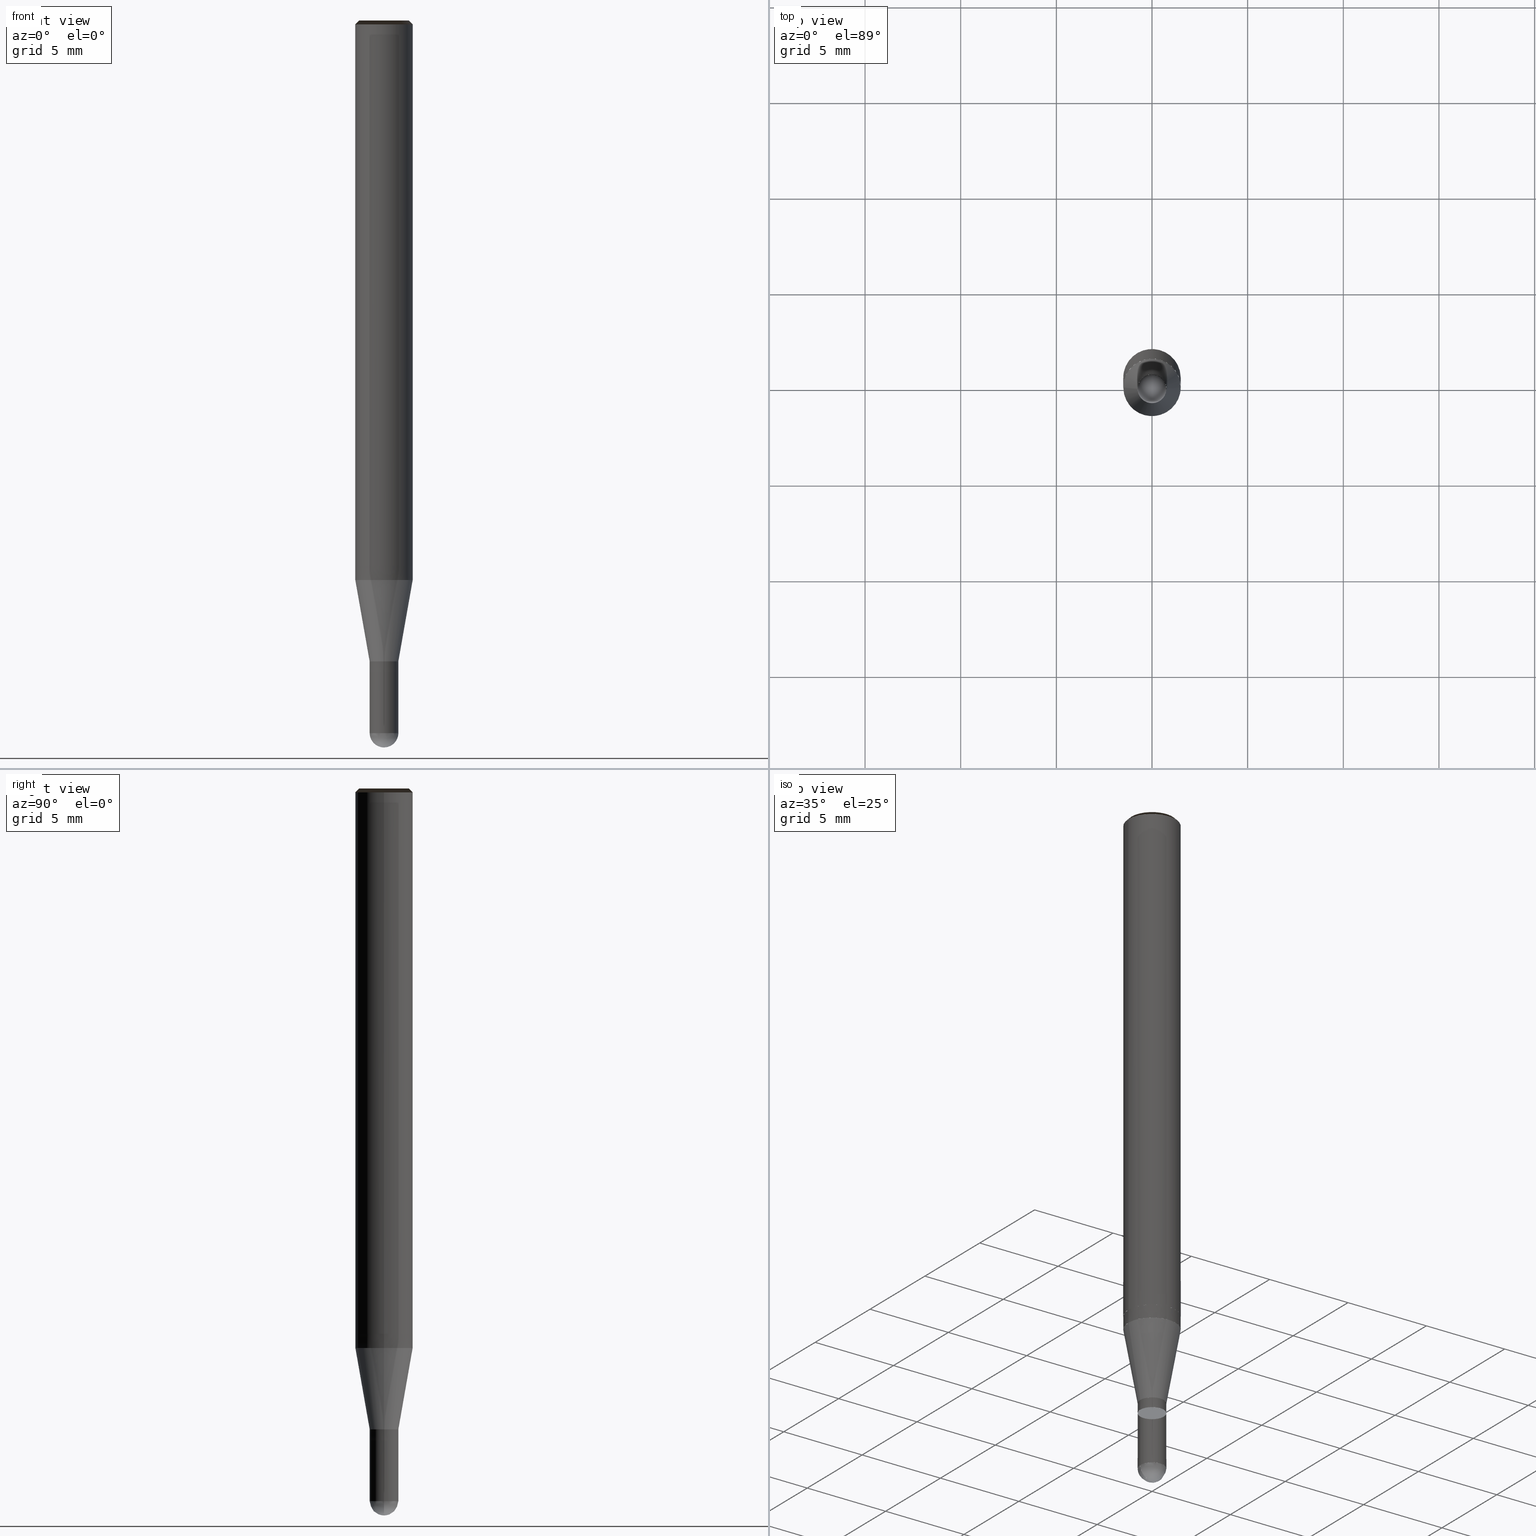
[diagram: canonical four-view strip — front | top / right | iso, engineering-drawing reading convention]
A machine part, canonical four-view strip (front | top / right | iso — engineering-drawing reading convention). The complete STEP part file that produces these views, byte-faithful:
ISO-10303-21;
HEADER;
/* Generated by ISBE GmbH (www.isbe.de) */
/* OPTION: using custom schema-name function */

FILE_DESCRIPTION(
/* description */ (''),
/* implementation_level */ '2;1');

FILE_NAME(
/*name*/ 'Drawing No  1240150   Issue  1',
/*time_stamp*/'2021-9-29T7:41:58',
/*author*/ ('ISBE GmbH'),
/*organization*/ ('ISBE GmbH'),
/*preprocessor_version*/ 'STEP IO v1.0',
/*originating_system*/ '',
/*authorisation*/ '');

FILE_SCHEMA (('AUTOMOTIVE_DESIGN'));
ENDSEC;

DATA;
#10=SHAPE_DEFINITION_REPRESENTATION(#11,#57);
#11=PRODUCT_DEFINITION_SHAPE('Document','',#13);
#12=PRODUCT_DEFINITION_CONTEXT('3D Mechanical Parts',#17,'design');
#13=PRODUCT_DEFINITION('A','First version',#14,#12);
#14=PRODUCT_DEFINITION_FORMATION_WITH_SPECIFIED_SOURCE('A','First version',#19,.MADE.);
#15=PRODUCT_RELATED_PRODUCT_CATEGORY('tool','tool',(#19));
#16=APPLICATION_PROTOCOL_DEFINITION('Draft International Standard', 'automotive_design',1999,#17);
#17=APPLICATION_CONTEXT('data for automotive mechanical design processes');
#18=PRODUCT_CONTEXT('3D Mechanical Parts',#17,'mechanical');
#19=PRODUCT('Document','Document','ISBE converted to STEP',(#18));
#20=(
LENGTH_UNIT()
NAMED_UNIT(*)
SI_UNIT(.MILLI.,.METRE.)
);
#21=(
NAMED_UNIT(*)
PLANE_ANGLE_UNIT()
SI_UNIT($,.RADIAN.)
);
#22=DIMENSIONAL_EXPONENTS(0.,0.,0.,0.,0.,0.,0.);
#23=PLANE_ANGLE_MEASURE_WITH_UNIT(PLANE_ANGLE_MEASURE(0.01745329252),#21);
#24=(
CONVERSION_BASED_UNIT('DEGREES',#23)
NAMED_UNIT(#22)
PLANE_ANGLE_UNIT()
);
#25=(
NAMED_UNIT(*)
SI_UNIT($,.STERADIAN.)
SOLID_ANGLE_UNIT()
);
#26=UNCERTAINTY_MEASURE_WITH_UNIT(LENGTH_MEASURE(0.001),#20, 'DISTANCE_ACCURACY_VALUE', 'Maximum model space distance between geometric entities at asserted connectivities');
#27=(
GEOMETRIC_REPRESENTATION_CONTEXT(3)
GLOBAL_UNCERTAINTY_ASSIGNED_CONTEXT((#26))
GLOBAL_UNIT_ASSIGNED_CONTEXT((#25,#24,#20))
REPRESENTATION_CONTEXT('ID1','3D')
);
#28=CARTESIAN_POINT('',(0.0,0.0,0.0));
#29=DIRECTION('',(1.0,0.0,0.0));
#30=DIRECTION('',(0.0,0.0,1.0));
#31=AXIS2_PLACEMENT_3D('',#28,#30,#29);
#32=CARTESIAN_POINT('',(0.0,0.0,0.0));
#33=DIRECTION('',(1.0,0.0,0.0));
#34=DIRECTION('',(0.0,0.0,1.0));
#35=AXIS2_PLACEMENT_3D('',#32,#34,#33);
#36=CARTESIAN_POINT('',(0.0,0.0,0.0));
#37=DIRECTION('',(1.0,0.0,0.0));
#38=DIRECTION('',(0.0,0.0,1.0));
#39=AXIS2_PLACEMENT_3D('',#36,#38,#37);
#40=CARTESIAN_POINT('',(0.0,0.0,0.0));
#41=DIRECTION('',(0.0,0.0,1.0));
#42=DIRECTION('',(1.0,0.0,0.0));
#43=AXIS2_PLACEMENT_3D('MCS',#40,#42,#41);
#44=CARTESIAN_POINT('',(0.0,0.0,28.5));
#45=DIRECTION('',(0.0,0.0,1.0));
#46=DIRECTION('',(1.0,0.0,0.0));
#47=AXIS2_PLACEMENT_3D('PCS',#44,#46,#45);
#48=CARTESIAN_POINT('',(0.0,0.0,-9.5));
#49=DIRECTION('',(0.0,0.0,1.0));
#50=DIRECTION('',(1.0,0.0,0.0));
#51=AXIS2_PLACEMENT_3D('CIP',#48,#50,#49);
#52=CARTESIAN_POINT('',(0.0,-0.75,-9.5));
#53=DIRECTION('',(0.0,0.0,1.0));
#54=DIRECTION('',(1.0,0.0,0.0));
#55=AXIS2_PLACEMENT_3D('CRP',#52,#54,#53);
#57=SHAPE_REPRESENTATION('Document',(#31,#35,#39,#43,#47,#51,#55),#27);
#58=DIRECTION('',(1.0,0.0,0.0));
#59=DIRECTION('',(0.0,0.0,1.0));
#60=CARTESIAN_POINT('',(-0.007499618017,-0.00007569408,-9.499879775699));
#61=CARTESIAN_POINT('',(-0.007264440578,-0.022914759262,-9.499614662151));
#62=CARTESIAN_POINT('',(-0.006968593454,-0.047544687584,-9.498459044563));
#63=CARTESIAN_POINT('',(-0.006592065794,-0.071714934043,-9.496534334712));
#64=CARTESIAN_POINT('',(-0.006089863845,-0.095714331887,-9.493842510367));
#65=CARTESIAN_POINT('',(-0.005420191534,-0.119577141114,-9.490386337561));
#66=CARTESIAN_POINT('',(-0.004542526544,-0.14329699037,-9.486169367743));
#67=CARTESIAN_POINT('',(-0.003417547289,-0.166855704946,-9.481195934136));
#68=CARTESIAN_POINT('',(-0.002007275614,-0.190230348026,-9.475471147279));
#69=CARTESIAN_POINT('',(-0.00027526409,-0.213395512438,-9.469000889777));
#70=CARTESIAN_POINT('',(0.001813206223,-0.236324207674,-9.461791810258));
#71=CARTESIAN_POINT('',(0.004290927331,-0.25898824713,-9.453851316537));
#72=CARTESIAN_POINT('',(0.007188568996,-0.281358436449,-9.44518756801));
#73=CARTESIAN_POINT('',(0.010534488597,-0.303404678876,-9.435809467262));
#74=CARTESIAN_POINT('',(0.014354547604,-0.325096047639,-9.425726650927));
#75=CARTESIAN_POINT('',(0.018671935936,-0.346400848944,-9.41494947978));
#76=CARTESIAN_POINT('',(0.023507005404,-0.367286687561,-9.403489028093));
#77=CARTESIAN_POINT('',(0.028877113444,-0.387720541355,-9.391357072254));
#78=CARTESIAN_POINT('',(0.034796478385,-0.407668848257,-9.378566078669));
#79=CARTESIAN_POINT('',(0.041276047482,-0.427097607519,-9.365129190948));
#80=CARTESIAN_POINT('',(0.048323378998,-0.445972496128,-9.351060216401));
#81=CARTESIAN_POINT('',(0.055942539583,-0.464259000548,-9.336373611851));
#82=CARTESIAN_POINT('',(0.064134018198,-0.481922563522,-9.321084468777));
#83=CARTESIAN_POINT('',(0.072894657796,-0.498928745242,-9.305208497806));
#84=CARTESIAN_POINT('',(0.082217605908,-0.515243397907,-9.288762012573));
#85=CARTESIAN_POINT('',(0.092092285213,-0.530832852409,-9.271761912953));
#86=CARTESIAN_POINT('',(0.102504385064,-0.545664115623,-9.254225667696));
#87=CARTESIAN_POINT('',(0.113435874833,-0.559705076606,-9.236171296481));
#88=CARTESIAN_POINT('',(0.124865039771,-0.572924719765,-9.217617351394));
#89=CARTESIAN_POINT('',(0.136766539957,-0.585293342939,-9.198582897868));
#90=CARTESIAN_POINT('',(0.149111492678,-0.596782778159,-9.179087495092));
#91=CARTESIAN_POINT('',(0.161867578431,-0.607366612769,-9.159151175908));
#92=CARTESIAN_POINT('',(0.174999170476,-0.617020408465,-9.138794426233));
#93=CARTESIAN_POINT('',(0.188467487699,-0.625721915804,-9.118038164003));
#94=CARTESIAN_POINT('',(0.202230770238,-0.633451281653,-9.096903717681));
#95=CARTESIAN_POINT('',(0.216244477153,-0.640191247108,-9.075412804338));
#96=CARTESIAN_POINT('',(0.230461505126,-0.645927333406,-9.053587507342));
#97=CARTESIAN_POINT('',(0.24483242696,-0.650648013464,-9.03145025366));
#98=CARTESIAN_POINT('',(0.259305748389,-0.654344866751,-9.009023790816));
#99=CARTESIAN_POINT('',(0.273828181518,-0.657012715369,-8.986331163518));
#100=CARTESIAN_POINT('',(0.288344932941,-0.658649739352,-8.963395689973));
#101=CARTESIAN_POINT('',(0.302800004453,-0.65925756942,-8.940240937932));
#102=CARTESIAN_POINT('',(0.317136504044,-0.658841355639,-8.916890700467));
#103=CARTESIAN_POINT('',(0.33129696473,-0.657409810669,-8.893368971526));
#104=CARTESIAN_POINT('',(0.345223668669,-0.654975226583,-8.869699921275));
#105=CARTESIAN_POINT('',(0.358858973882,-0.651553464494,-8.845907871263));
#106=CARTESIAN_POINT('',(0.372145640857,-0.647163916558,-8.822017269431));
#107=CARTESIAN_POINT('',(0.385027156301,-0.641829440193,-8.798052664986));
#108=CARTESIAN_POINT('',(0.397448051273,-0.6355762647,-8.774038683179));
#109=CARTESIAN_POINT('',(0.409354211005,-0.628433870771,-8.75));
#110=CARTESIAN_POINT('',(0.432923371046,-0.612435592371,-8.700657894737));
#111=CARTESIAN_POINT('',(0.455868005285,-0.595553827758,-8.651315789474));
#112=CARTESIAN_POINT('',(0.478155014294,-0.577812930199,-8.601973684211));
#113=CARTESIAN_POINT('',(0.499752247322,-0.559238492324,-8.552631578947));
#114=CARTESIAN_POINT('',(0.52062854867,-0.539857309212,-8.503289473684));
#115=CARTESIAN_POINT('',(0.540753802643,-0.519697339735,-8.453947368421));
#116=CARTESIAN_POINT('',(0.560098976988,-0.498787666223,-8.404605263158));
#117=CARTESIAN_POINT('',(0.57863616478,-0.477158452517,-8.355263157895));
#118=CARTESIAN_POINT('',(0.596338624677,-0.454840900446,-8.305921052632));
#119=CARTESIAN_POINT('',(0.613180819495,-0.431867204825,-8.256578947368));
#120=CARTESIAN_POINT('',(0.629138453053,-0.408270507005,-8.207236842105));
#121=CARTESIAN_POINT('',(0.644188505217,-0.384084847066,-8.157894736842));
#122=CARTESIAN_POINT('',(0.658309265111,-0.359345114714,-8.108552631579));
#123=CARTESIAN_POINT('',(0.671480362434,-0.334086998947,-8.059210526316));
#124=CARTESIAN_POINT('',(0.683682796849,-0.308346936571,-8.009868421053));
#125=CARTESIAN_POINT('',(0.694898965391,-0.282162059637,-7.960526315789));
#126=CARTESIAN_POINT('',(0.70511268786,-0.255570141877,-7.911184210526));
#127=CARTESIAN_POINT('',(0.714309230162,-0.228609544212,-7.861842105263));
#128=CARTESIAN_POINT('',(0.722475325568,-0.20131915941,-7.8125));
#129=CARTESIAN_POINT('',(0.729599193845,-0.173738355985,-7.763157894737));
#130=CARTESIAN_POINT('',(0.735670558258,-0.145906921402,-7.713815789474));
#131=CARTESIAN_POINT('',(0.740680660387,-0.117865004679,-7.664473684211));
#132=CARTESIAN_POINT('',(0.744622272771,-0.089653058475,-7.615131578947));
#133=CARTESIAN_POINT('',(0.747489709323,-0.061311780727,-7.565789473684));
#134=CARTESIAN_POINT('',(0.749278833544,-0.032882055942,-7.516447368421));
#135=CARTESIAN_POINT('',(0.749987064481,-0.004404896222,-7.467105263158));
#136=CARTESIAN_POINT('',(0.749613380457,0.024078617906,-7.417763157895));
#137=CARTESIAN_POINT('',(0.748158320539,0.052527396745,-7.368421052632));
#138=CARTESIAN_POINT('',(0.745623983765,0.080900400708,-7.319078947368));
#139=CARTESIAN_POINT('',(0.742014026114,0.109156699521,-7.269736842105));
#140=CARTESIAN_POINT('',(0.737333655232,0.137255531262,-7.220394736842));
#141=CARTESIAN_POINT('',(0.73158962292,0.165156361171,-7.171052631579));
#142=CARTESIAN_POINT('',(0.724790215394,0.192818940119,-7.121710526316));
#143=CARTESIAN_POINT('',(0.71694524133,0.220203362676,-7.072368421053));
#144=CARTESIAN_POINT('',(0.708066017717,0.247270124669,-7.023026315789));
#145=CARTESIAN_POINT('',(0.698165353529,0.273980180181,-6.973684210526));
#146=CARTESIAN_POINT('',(0.687257531247,0.300294997867,-6.924342105263));
#147=CARTESIAN_POINT('',(0.675358286258,0.326176616547,-6.875));
#148=CARTESIAN_POINT('',(0.662484784153,0.351587699963,-6.825657894737));
#149=CARTESIAN_POINT('',(0.648655595965,0.37649159064,-6.776315789474));
#150=CARTESIAN_POINT('',(0.633890671379,0.40085236277,-6.726973684211));
#151=CARTESIAN_POINT('',(0.618211309953,0.424634874035,-6.677631578947));
#152=CARTESIAN_POINT('',(0.60164013039,0.447804816303,-6.628289473684));
#153=CARTESIAN_POINT('',(0.584201037913,0.470328765122,-6.578947368421));
#154=CARTESIAN_POINT('',(0.565919189776,0.492174227935,-6.529605263158));
#155=CARTESIAN_POINT('',(0.546820958974,0.513309690954,-6.480263157895));
#156=CARTESIAN_POINT('',(0.526933896197,0.533704664621,-6.430921052632));
#157=CARTESIAN_POINT('',(0.506286690088,0.553329727594,-6.381578947368));
#158=CARTESIAN_POINT('',(0.484909125856,0.572156569185,-6.332236842105));
#159=CARTESIAN_POINT('',(0.462832042307,0.590158030204,-6.282894736842));
#160=CARTESIAN_POINT('',(0.440087287361,0.607308142135,-6.233552631579));
#161=CARTESIAN_POINT('',(0.416707672104,0.623582164602,-6.184210526316));
#162=CARTESIAN_POINT('',(0.39272692346,0.638956621055,-6.134868421053));
#163=CARTESIAN_POINT('',(0.368179635531,0.653409332639,-6.085526315789));
#164=CARTESIAN_POINT('',(0.3431012197,0.666919450189,-6.036184210526));
#165=CARTESIAN_POINT('',(0.317527853541,0.679467484303,-5.986842105263));
#166=CARTESIAN_POINT('',(0.291496428635,0.691035333462,-5.9375));
#167=CARTESIAN_POINT('',(0.265044497346,0.701606310139,-5.888157894737));
#168=CARTESIAN_POINT('',(0.238210218654,0.711165164873,-5.838815789474));
#169=CARTESIAN_POINT('',(0.211032303101,0.71969810827,-5.789473684211));
#170=CARTESIAN_POINT('',(0.183549956956,0.727192830892,-5.740131578947));
#171=CARTESIAN_POINT('',(0.155802825652,0.733638521016,-5.690789473684));
#172=CARTESIAN_POINT('',(0.127830936593,0.73902588023,-5.641447368421));
#173=CARTESIAN_POINT('',(0.099674641417,0.743347136847,-5.592105263158));
#174=CARTESIAN_POINT('',(0.007499618017,0.00007569408,-9.499879775699));
#175=CARTESIAN_POINT('',(0.007264440578,0.022914759262,-9.499614662151));
#176=CARTESIAN_POINT('',(0.006968593454,0.047544687584,-9.498459044563));
#177=CARTESIAN_POINT('',(0.006592065794,0.071714934043,-9.496534334712));
#178=CARTESIAN_POINT('',(0.006089863845,0.095714331887,-9.493842510367));
#179=CARTESIAN_POINT('',(0.005420191534,0.119577141114,-9.490386337561));
#180=CARTESIAN_POINT('',(0.004542526544,0.14329699037,-9.486169367743));
#181=CARTESIAN_POINT('',(0.003417547289,0.166855704946,-9.481195934136));
#182=CARTESIAN_POINT('',(0.002007275614,0.190230348026,-9.475471147279));
#183=CARTESIAN_POINT('',(0.00027526409,0.213395512438,-9.469000889777));
#184=CARTESIAN_POINT('',(-0.001813206223,0.236324207674,-9.461791810258));
#185=CARTESIAN_POINT('',(-0.004290927331,0.25898824713,-9.453851316537));
#186=CARTESIAN_POINT('',(-0.007188568996,0.281358436449,-9.44518756801));
#187=CARTESIAN_POINT('',(-0.010534488597,0.303404678876,-9.435809467262));
#188=CARTESIAN_POINT('',(-0.014354547604,0.325096047639,-9.425726650927));
#189=CARTESIAN_POINT('',(-0.018671935936,0.346400848944,-9.41494947978));
#190=CARTESIAN_POINT('',(-0.023507005404,0.367286687561,-9.403489028093));
#191=CARTESIAN_POINT('',(-0.028877113444,0.387720541355,-9.391357072254));
#192=CARTESIAN_POINT('',(-0.034796478385,0.407668848257,-9.378566078669));
#193=CARTESIAN_POINT('',(-0.041276047482,0.427097607519,-9.365129190948));
#194=CARTESIAN_POINT('',(-0.048323378998,0.445972496128,-9.351060216401));
#195=CARTESIAN_POINT('',(-0.055942539583,0.464259000548,-9.336373611851));
#196=CARTESIAN_POINT('',(-0.064134018198,0.481922563522,-9.321084468777));
#197=CARTESIAN_POINT('',(-0.072894657796,0.498928745242,-9.305208497806));
#198=CARTESIAN_POINT('',(-0.082217605908,0.515243397907,-9.288762012573));
#199=CARTESIAN_POINT('',(-0.092092285213,0.530832852409,-9.271761912953));
#200=CARTESIAN_POINT('',(-0.102504385064,0.545664115623,-9.254225667696));
#201=CARTESIAN_POINT('',(-0.113435874833,0.559705076606,-9.236171296481));
#202=CARTESIAN_POINT('',(-0.124865039771,0.572924719765,-9.217617351394));
#203=CARTESIAN_POINT('',(-0.136766539957,0.585293342939,-9.198582897868));
#204=CARTESIAN_POINT('',(-0.149111492678,0.596782778159,-9.179087495092));
#205=CARTESIAN_POINT('',(-0.161867578431,0.607366612769,-9.159151175908));
#206=CARTESIAN_POINT('',(-0.174999170476,0.617020408465,-9.138794426233));
#207=CARTESIAN_POINT('',(-0.188467487699,0.625721915804,-9.118038164003));
#208=CARTESIAN_POINT('',(-0.202230770238,0.633451281653,-9.096903717681));
#209=CARTESIAN_POINT('',(-0.216244477153,0.640191247108,-9.075412804338));
#210=CARTESIAN_POINT('',(-0.230461505126,0.645927333406,-9.053587507342));
#211=CARTESIAN_POINT('',(-0.24483242696,0.650648013464,-9.03145025366));
#212=CARTESIAN_POINT('',(-0.259305748389,0.654344866751,-9.009023790816));
#213=CARTESIAN_POINT('',(-0.273828181518,0.657012715369,-8.986331163518));
#214=CARTESIAN_POINT('',(-0.288344932941,0.658649739352,-8.963395689973));
#215=CARTESIAN_POINT('',(-0.302800004453,0.65925756942,-8.940240937932));
#216=CARTESIAN_POINT('',(-0.317136504044,0.658841355639,-8.916890700467));
#217=CARTESIAN_POINT('',(-0.33129696473,0.657409810669,-8.893368971526));
#218=CARTESIAN_POINT('',(-0.345223668669,0.654975226583,-8.869699921275));
#219=CARTESIAN_POINT('',(-0.358858973882,0.651553464494,-8.845907871263));
#220=CARTESIAN_POINT('',(-0.372145640857,0.647163916558,-8.822017269431));
#221=CARTESIAN_POINT('',(-0.385027156301,0.641829440193,-8.798052664986));
#222=CARTESIAN_POINT('',(-0.397448051273,0.6355762647,-8.774038683179));
#223=CARTESIAN_POINT('',(-0.409354211005,0.628433870771,-8.75));
#224=CARTESIAN_POINT('',(-0.432923371046,0.612435592371,-8.700657894737));
#225=CARTESIAN_POINT('',(-0.455868005285,0.595553827758,-8.651315789474));
#226=CARTESIAN_POINT('',(-0.478155014294,0.577812930199,-8.601973684211));
#227=CARTESIAN_POINT('',(-0.499752247322,0.559238492324,-8.552631578947));
#228=CARTESIAN_POINT('',(-0.52062854867,0.539857309212,-8.503289473684));
#229=CARTESIAN_POINT('',(-0.540753802643,0.519697339735,-8.453947368421));
#230=CARTESIAN_POINT('',(-0.560098976988,0.498787666223,-8.404605263158));
#231=CARTESIAN_POINT('',(-0.57863616478,0.477158452517,-8.355263157895));
#232=CARTESIAN_POINT('',(-0.596338624677,0.454840900446,-8.305921052632));
#233=CARTESIAN_POINT('',(-0.613180819495,0.431867204825,-8.256578947368));
#234=CARTESIAN_POINT('',(-0.629138453053,0.408270507005,-8.207236842105));
#235=CARTESIAN_POINT('',(-0.644188505217,0.384084847066,-8.157894736842));
#236=CARTESIAN_POINT('',(-0.658309265111,0.359345114714,-8.108552631579));
#237=CARTESIAN_POINT('',(-0.671480362434,0.334086998947,-8.059210526316));
#238=CARTESIAN_POINT('',(-0.683682796849,0.308346936571,-8.009868421053));
#239=CARTESIAN_POINT('',(-0.694898965391,0.282162059637,-7.960526315789));
#240=CARTESIAN_POINT('',(-0.70511268786,0.255570141877,-7.911184210526));
#241=CARTESIAN_POINT('',(-0.714309230162,0.228609544212,-7.861842105263));
#242=CARTESIAN_POINT('',(-0.722475325568,0.20131915941,-7.8125));
#243=CARTESIAN_POINT('',(-0.729599193845,0.173738355985,-7.763157894737));
#244=CARTESIAN_POINT('',(-0.735670558258,0.145906921402,-7.713815789474));
#245=CARTESIAN_POINT('',(-0.740680660387,0.117865004679,-7.664473684211));
#246=CARTESIAN_POINT('',(-0.744622272771,0.089653058475,-7.615131578947));
#247=CARTESIAN_POINT('',(-0.747489709323,0.061311780727,-7.565789473684));
#248=CARTESIAN_POINT('',(-0.749278833544,0.032882055942,-7.516447368421));
#249=CARTESIAN_POINT('',(-0.749987064481,0.004404896222,-7.467105263158));
#250=CARTESIAN_POINT('',(-0.749613380457,-0.024078617906,-7.417763157895));
#251=CARTESIAN_POINT('',(-0.748158320539,-0.052527396745,-7.368421052632));
#252=CARTESIAN_POINT('',(-0.745623983765,-0.080900400708,-7.319078947368));
#253=CARTESIAN_POINT('',(-0.742014026114,-0.109156699521,-7.269736842105));
#254=CARTESIAN_POINT('',(-0.737333655232,-0.137255531262,-7.220394736842));
#255=CARTESIAN_POINT('',(-0.73158962292,-0.165156361171,-7.171052631579));
#256=CARTESIAN_POINT('',(-0.724790215394,-0.192818940119,-7.121710526316));
#257=CARTESIAN_POINT('',(-0.71694524133,-0.220203362676,-7.072368421053));
#258=CARTESIAN_POINT('',(-0.708066017717,-0.247270124669,-7.023026315789));
#259=CARTESIAN_POINT('',(-0.698165353529,-0.273980180181,-6.973684210526));
#260=CARTESIAN_POINT('',(-0.687257531247,-0.300294997867,-6.924342105263));
#261=CARTESIAN_POINT('',(-0.675358286258,-0.326176616547,-6.875));
#262=CARTESIAN_POINT('',(-0.662484784153,-0.351587699963,-6.825657894737));
#263=CARTESIAN_POINT('',(-0.648655595965,-0.37649159064,-6.776315789474));
#264=CARTESIAN_POINT('',(-0.633890671379,-0.40085236277,-6.726973684211));
#265=CARTESIAN_POINT('',(-0.618211309953,-0.424634874035,-6.677631578947));
#266=CARTESIAN_POINT('',(-0.60164013039,-0.447804816303,-6.628289473684));
#267=CARTESIAN_POINT('',(-0.584201037913,-0.470328765122,-6.578947368421));
#268=CARTESIAN_POINT('',(-0.565919189776,-0.492174227935,-6.529605263158));
#269=CARTESIAN_POINT('',(-0.546820958974,-0.513309690954,-6.480263157895));
#270=CARTESIAN_POINT('',(-0.526933896197,-0.533704664621,-6.430921052632));
#271=CARTESIAN_POINT('',(-0.506286690088,-0.553329727594,-6.381578947368));
#272=CARTESIAN_POINT('',(-0.484909125856,-0.572156569185,-6.332236842105));
#273=CARTESIAN_POINT('',(-0.462832042307,-0.590158030204,-6.282894736842));
#274=CARTESIAN_POINT('',(-0.440087287361,-0.607308142135,-6.233552631579));
#275=CARTESIAN_POINT('',(-0.416707672104,-0.623582164602,-6.184210526316));
#276=CARTESIAN_POINT('',(-0.39272692346,-0.638956621055,-6.134868421053));
#277=CARTESIAN_POINT('',(-0.368179635531,-0.653409332639,-6.085526315789));
#278=CARTESIAN_POINT('',(-0.3431012197,-0.666919450189,-6.036184210526));
#279=CARTESIAN_POINT('',(-0.317527853541,-0.679467484303,-5.986842105263));
#280=CARTESIAN_POINT('',(-0.291496428635,-0.691035333462,-5.9375));
#281=CARTESIAN_POINT('',(-0.265044497346,-0.701606310139,-5.888157894737));
#282=CARTESIAN_POINT('',(-0.238210218654,-0.711165164873,-5.838815789474));
#283=CARTESIAN_POINT('',(-0.211032303101,-0.71969810827,-5.789473684211));
#284=CARTESIAN_POINT('',(-0.183549956956,-0.727192830892,-5.740131578947));
#285=CARTESIAN_POINT('',(-0.155802825652,-0.733638521016,-5.690789473684));
#286=CARTESIAN_POINT('',(-0.127830936593,-0.73902588023,-5.641447368421));
#287=CARTESIAN_POINT('',(-0.099674641417,-0.743347136847,-5.592105263158));
#288=CARTESIAN_POINT('',(0.0,0.0,-9.5));
#289=CARTESIAN_POINT('',(0.75,0.0,-9.5));
#290=CARTESIAN_POINT('',(0.75,0.75,-9.5));
#291=CARTESIAN_POINT('',(0.0,0.75,-9.5));
#292=CARTESIAN_POINT('',(-0.75,0.75,-9.5));
#293=CARTESIAN_POINT('',(-0.75,0.0,-9.5));
#294=CARTESIAN_POINT('',(0.75,0.0,-8.75));
#295=CARTESIAN_POINT('',(0.75,0.75,-8.75));
#296=CARTESIAN_POINT('',(0.0,0.75,-8.75));
#297=CARTESIAN_POINT('',(-0.75,0.75,-8.75));
#298=CARTESIAN_POINT('',(-0.75,0.0,-8.75));
#299=CARTESIAN_POINT('',(0.75,0.0,-5.5625));
#300=CARTESIAN_POINT('',(0.75,0.75,-5.5625));
#301=CARTESIAN_POINT('',(0.0,0.75,-5.5625));
#302=CARTESIAN_POINT('',(-0.75,0.75,-5.5625));
#303=CARTESIAN_POINT('',(-0.75,0.0,-5.5625));
#304=CARTESIAN_POINT('',(0.0,0.0,-5.5625));
#305=CARTESIAN_POINT('',(-0.75,-0.75,-9.5));
#306=CARTESIAN_POINT('',(0.0,-0.75,-9.5));
#307=CARTESIAN_POINT('',(0.75,-0.75,-9.5));
#308=CARTESIAN_POINT('',(-0.75,-0.75,-8.75));
#309=CARTESIAN_POINT('',(0.0,-0.75,-8.75));
#310=CARTESIAN_POINT('',(0.75,-0.75,-8.75));
#311=CARTESIAN_POINT('',(-0.75,-0.75,-5.5625));
#312=CARTESIAN_POINT('',(0.0,-0.75,-5.5625));
#313=CARTESIAN_POINT('',(0.75,-0.75,-5.5625));
#314=CARTESIAN_POINT('',(0.75,0.0,-5.0));
#315=CARTESIAN_POINT('',(0.75,0.75,-5.0));
#316=CARTESIAN_POINT('',(0.0,0.75,-5.0));
#317=CARTESIAN_POINT('',(-0.75,0.75,-5.0));
#318=CARTESIAN_POINT('',(-0.75,0.0,-5.0));
#319=CARTESIAN_POINT('',(1.5,0.0,-0.746538635287));
#320=CARTESIAN_POINT('',(1.5,1.5,-0.746538635287));
#321=CARTESIAN_POINT('',(0.0,1.5,-0.746538635287));
#322=CARTESIAN_POINT('',(-1.5,1.5,-0.746538635287));
#323=CARTESIAN_POINT('',(-1.5,0.0,-0.746538635287));
#324=CARTESIAN_POINT('',(1.5,0.0,0.0));
#325=CARTESIAN_POINT('',(1.5,1.5,0.0));
#326=CARTESIAN_POINT('',(0.0,1.5,0.0));
#327=CARTESIAN_POINT('',(-1.5,1.5,0.0));
#328=CARTESIAN_POINT('',(-1.5,0.0,0.0));
#329=CARTESIAN_POINT('',(1.5,0.0,28.3));
#330=CARTESIAN_POINT('',(1.5,1.5,28.3));
#331=CARTESIAN_POINT('',(0.0,1.5,28.3));
#332=CARTESIAN_POINT('',(-1.5,1.5,28.3));
#333=CARTESIAN_POINT('',(-1.5,0.0,28.3));
#334=CARTESIAN_POINT('',(1.3,0.0,28.5));
#335=CARTESIAN_POINT('',(1.3,1.3,28.5));
#336=CARTESIAN_POINT('',(0.0,1.3,28.5));
#337=CARTESIAN_POINT('',(-1.3,1.3,28.5));
#338=CARTESIAN_POINT('',(-1.3,0.0,28.5));
#339=CARTESIAN_POINT('',(0.0,0.0,28.5));
#340=CARTESIAN_POINT('',(-0.75,-0.75,-5.0));
#341=CARTESIAN_POINT('',(0.0,-0.75,-5.0));
#342=CARTESIAN_POINT('',(0.75,-0.75,-5.0));
#343=CARTESIAN_POINT('',(-1.5,-1.5,-0.746538635287));
#344=CARTESIAN_POINT('',(0.0,-1.5,-0.746538635287));
#345=CARTESIAN_POINT('',(1.5,-1.5,-0.746538635287));
#346=CARTESIAN_POINT('',(-1.5,-1.5,0.0));
#347=CARTESIAN_POINT('',(0.0,-1.5,0.0));
#348=CARTESIAN_POINT('',(1.5,-1.5,0.0));
#349=CARTESIAN_POINT('',(-1.5,-1.5,28.3));
#350=CARTESIAN_POINT('',(0.0,-1.5,28.3));
#351=CARTESIAN_POINT('',(1.5,-1.5,28.3));
#352=CARTESIAN_POINT('',(-1.3,-1.3,28.5));
#353=CARTESIAN_POINT('',(0.0,-1.3,28.5));
#354=CARTESIAN_POINT('',(1.3,-1.3,28.5));
#355=(
BOUNDED_CURVE()
B_SPLINE_CURVE(1,(#60,#61,#62,#63,#64,#65,#66,#67,#68,#69,#70,#71,#72,#73,#74,#75,#76,#77,#78,#79,#80,#81,#82,#83,#84,#85,#86,#87,#88,#89,#90,#91,#92,#93,#94,#95,#96,#97,#98,#99,#100,#101,#102,#103,#104,#105,#106,#107,#108,#109,#110,#111,#112,#113,#114,#115,#116,#117,#118,#119,#120,#121,#122,#123,#124,#125,#126,#127,#128,#129,#130,#131,#132,#133,#134,#135,#136,#137,#138,#139,#140,#141,#142,#143,#144,#145,#146,#147,#148,#149,#150,#151,#152,#153,#154,#155,#156,#157,#158,#159,#160,#161,#162,#163,#164,#165,#166,#167,#168,#169,#170,#171,#172,#173),.UNSPECIFIED.,.F.,.F.)
B_SPLINE_CURVE_WITH_KNOTS((2,1,1,1,1,1,1,1,1,1,1,1,1,1,1,1,1,1,1,1,1,1,1,1,1,1,1,1,1,1,1,1,1,1,1,1,1,1,1,1,1,1,1,1,1,1,1,1,1,1,1,1,1,1,1,1,1,1,1,1,1,1,1,1,1,1,1,1,1,1,1,1,1,1,1,1,1,1,1,1,1,1,1,1,1,1,1,1,1,1,1,1,1,1,1,1,1,1,1,1,1,1,1,1,1,1,1,1,1,1,1,1,1,2),
(0.0,0.004665343187,0.009701797609,0.014654691792,0.019588269477,0.024514900373,0.029438808733,0.034361993826,0.039285697201,0.044210895535,0.04913850156,0.054069457336,0.059004780851,0.063945589258,0.068893108665,0.073848675144,0.078813729329,0.083789805985,0.088778519425,0.09378154549,0.098800600668,0.103837418937,0.108893726909,0.113971217849,0.119071525144,0.124196195804,0.12934666454,0.134524228941,0.139730026231,0.144965012016,0.150229941389,0.155525352686,0.16085155411,0.166208613386,0.171596350534,0.177014333793,0.182461878672,0.18793805006,0.19344166728,0.19897131195,0.204525338478,0.210101887004,0.215698898583,0.221314132399,0.226945184784,0.232589509825,0.238244441323,0.243907215893,0.249574996961,0.255244899453,0.266881697899,0.278518496345,0.290155294791,0.301792093237,0.313428891684,0.32506569013,0.336702488576,0.348339287022,0.359976085468,0.371612883914,0.38324968236,0.394886480806,0.406523279252,0.418160077698,0.429796876144,0.44143367459,0.453070473036,0.464707271482,0.476344069928,0.487980868374,0.49961766682,0.511254465266,0.522891263712,0.534528062158,0.546164860604,0.55780165905,0.569438457496,0.581075255942,0.592712054389,0.604348852835,0.615985651281,0.627622449727,0.639259248173,0.650896046619,0.662532845065,0.674169643511,0.685806441957,0.697443240403,0.709080038849,0.720716837295,0.732353635741,0.743990434187,0.755627232633,0.767264031079,0.778900829525,0.790537627971,0.802174426417,0.813811224863,0.825448023309,0.837084821755,0.848721620201,0.860358418647,0.871995217094,0.88363201554,0.895268813986,0.906905612432,0.918542410878,0.930179209324,0.94181600777,0.953452806216,0.965089604662,0.976726403108,0.988363201554,1.0),.UNSPECIFIED.)
CURVE()
GEOMETRIC_REPRESENTATION_ITEM()
RATIONAL_B_SPLINE_CURVE((1.0,1.0,1.0,1.0,1.0,1.0,1.0,1.0,1.0,1.0,1.0,1.0,1.0,1.0,1.0,1.0,1.0,1.0,1.0,1.0,1.0,1.0,1.0,1.0,1.0,1.0,1.0,1.0,1.0,1.0,1.0,1.0,1.0,1.0,1.0,1.0,1.0,1.0,1.0,1.0,1.0,1.0,1.0,1.0,1.0,1.0,1.0,1.0,1.0,1.0,1.0,1.0,1.0,1.0,1.0,1.0,1.0,1.0,1.0,1.0,1.0,1.0,1.0,1.0,1.0,1.0,1.0,1.0,1.0,1.0,1.0,1.0,1.0,1.0,1.0,1.0,1.0,1.0,1.0,1.0,1.0,1.0,1.0,1.0,1.0,1.0,1.0,1.0,1.0,1.0,1.0,1.0,1.0,1.0,1.0,1.0,1.0,1.0,1.0,1.0,1.0,1.0,1.0,1.0,1.0,1.0,1.0,1.0,1.0,1.0,1.0,1.0,1.0,1.0))
REPRESENTATION_ITEM('')
);
#356=(
BOUNDED_CURVE()
B_SPLINE_CURVE(1,(#174,#175,#176,#177,#178,#179,#180,#181,#182,#183,#184,#185,#186,#187,#188,#189,#190,#191,#192,#193,#194,#195,#196,#197,#198,#199,#200,#201,#202,#203,#204,#205,#206,#207,#208,#209,#210,#211,#212,#213,#214,#215,#216,#217,#218,#219,#220,#221,#222,#223,#224,#225,#226,#227,#228,#229,#230,#231,#232,#233,#234,#235,#236,#237,#238,#239,#240,#241,#242,#243,#244,#245,#246,#247,#248,#249,#250,#251,#252,#253,#254,#255,#256,#257,#258,#259,#260,#261,#262,#263,#264,#265,#266,#267,#268,#269,#270,#271,#272,#273,#274,#275,#276,#277,#278,#279,#280,#281,#282,#283,#284,#285,#286,#287),.UNSPECIFIED.,.F.,.F.)
B_SPLINE_CURVE_WITH_KNOTS((2,1,1,1,1,1,1,1,1,1,1,1,1,1,1,1,1,1,1,1,1,1,1,1,1,1,1,1,1,1,1,1,1,1,1,1,1,1,1,1,1,1,1,1,1,1,1,1,1,1,1,1,1,1,1,1,1,1,1,1,1,1,1,1,1,1,1,1,1,1,1,1,1,1,1,1,1,1,1,1,1,1,1,1,1,1,1,1,1,1,1,1,1,1,1,1,1,1,1,1,1,1,1,1,1,1,1,1,1,1,1,1,1,2),
(0.0,0.004665343187,0.009701797609,0.014654691792,0.019588269477,0.024514900373,0.029438808733,0.034361993826,0.039285697201,0.044210895535,0.04913850156,0.054069457336,0.059004780851,0.063945589258,0.068893108665,0.073848675144,0.078813729329,0.083789805985,0.088778519425,0.09378154549,0.098800600668,0.103837418937,0.108893726909,0.113971217849,0.119071525144,0.124196195804,0.12934666454,0.134524228941,0.139730026231,0.144965012016,0.150229941389,0.155525352686,0.16085155411,0.166208613386,0.171596350534,0.177014333793,0.182461878672,0.18793805006,0.19344166728,0.19897131195,0.204525338478,0.210101887004,0.215698898583,0.221314132399,0.226945184784,0.232589509825,0.238244441323,0.243907215893,0.249574996961,0.255244899453,0.266881697899,0.278518496345,0.290155294791,0.301792093237,0.313428891684,0.32506569013,0.336702488576,0.348339287022,0.359976085468,0.371612883914,0.38324968236,0.394886480806,0.406523279252,0.418160077698,0.429796876144,0.44143367459,0.453070473036,0.464707271482,0.476344069928,0.487980868374,0.49961766682,0.511254465266,0.522891263712,0.534528062158,0.546164860604,0.55780165905,0.569438457496,0.581075255942,0.592712054389,0.604348852835,0.615985651281,0.627622449727,0.639259248173,0.650896046619,0.662532845065,0.674169643511,0.685806441957,0.697443240403,0.709080038849,0.720716837295,0.732353635741,0.743990434187,0.755627232633,0.767264031079,0.778900829525,0.790537627971,0.802174426417,0.813811224863,0.825448023309,0.837084821755,0.848721620201,0.860358418647,0.871995217094,0.88363201554,0.895268813986,0.906905612432,0.918542410878,0.930179209324,0.94181600777,0.953452806216,0.965089604662,0.976726403108,0.988363201554,1.0),.UNSPECIFIED.)
CURVE()
GEOMETRIC_REPRESENTATION_ITEM()
RATIONAL_B_SPLINE_CURVE((1.0,1.0,1.0,1.0,1.0,1.0,1.0,1.0,1.0,1.0,1.0,1.0,1.0,1.0,1.0,1.0,1.0,1.0,1.0,1.0,1.0,1.0,1.0,1.0,1.0,1.0,1.0,1.0,1.0,1.0,1.0,1.0,1.0,1.0,1.0,1.0,1.0,1.0,1.0,1.0,1.0,1.0,1.0,1.0,1.0,1.0,1.0,1.0,1.0,1.0,1.0,1.0,1.0,1.0,1.0,1.0,1.0,1.0,1.0,1.0,1.0,1.0,1.0,1.0,1.0,1.0,1.0,1.0,1.0,1.0,1.0,1.0,1.0,1.0,1.0,1.0,1.0,1.0,1.0,1.0,1.0,1.0,1.0,1.0,1.0,1.0,1.0,1.0,1.0,1.0,1.0,1.0,1.0,1.0,1.0,1.0,1.0,1.0,1.0,1.0,1.0,1.0,1.0,1.0,1.0,1.0,1.0,1.0,1.0,1.0,1.0,1.0,1.0,1.0))
REPRESENTATION_ITEM('')
);
#357=SHAPE_REPRESENTATION_RELATIONSHIP('','',#57,#358);
#358=GEOMETRICALLY_BOUNDED_WIREFRAME_SHAPE_REPRESENTATION('Curves',(#359,#31),#27);
#359=GEOMETRIC_CURVE_SET('CurveSet',(#355,#356));
#360=(
BOUNDED_SURFACE()
B_SPLINE_SURFACE(2,2,(
(#288,#288,#288,#288,#288),
(#289,#290,#291,#292,#293),
(#294,#295,#296,#297,#298)
), .UNSPECIFIED.,.F.,.F.,.F.)
B_SPLINE_SURFACE_WITH_KNOTS((3,3),(3,2,3),(
0.0,1.0),(
0.0,0.5,1.0), .UNSPECIFIED.)
GEOMETRIC_REPRESENTATION_ITEM()
RATIONAL_B_SPLINE_SURFACE(((1.0,0.707106781187,1.0,0.707106781187,1.0),
(0.707106781187,0.5,0.707106781187,0.5,0.707106781187),
(1.0,0.707106781187,1.0,0.707106781187,1.0)
))
REPRESENTATION_ITEM('')
SURFACE()
);
#361=(
BOUNDED_CURVE()
B_SPLINE_CURVE(2,(#298,#293,#288),.UNSPECIFIED.,.F.,.F.)
B_SPLINE_CURVE_WITH_KNOTS((3,3),
(0.0,1.0),.UNSPECIFIED.)
CURVE()
GEOMETRIC_REPRESENTATION_ITEM()
RATIONAL_B_SPLINE_CURVE((1.0,0.707106781187,1.0))
REPRESENTATION_ITEM('')
);
#362=(
BOUNDED_CURVE()
B_SPLINE_CURVE(2,(#288,#289,#294),.UNSPECIFIED.,.F.,.F.)
B_SPLINE_CURVE_WITH_KNOTS((3,3),
(0.0,1.0),.UNSPECIFIED.)
CURVE()
GEOMETRIC_REPRESENTATION_ITEM()
RATIONAL_B_SPLINE_CURVE((1.0,0.707106781187,1.0))
REPRESENTATION_ITEM('')
);
#363=(
BOUNDED_CURVE()
B_SPLINE_CURVE(2,(#294,#295,#296,#297,#298),.UNSPECIFIED.,.F.,.F.)
B_SPLINE_CURVE_WITH_KNOTS((3,2,3),
(0.0,0.5,1.0),.UNSPECIFIED.)
CURVE()
GEOMETRIC_REPRESENTATION_ITEM()
RATIONAL_B_SPLINE_CURVE((1.0,0.707106781187,1.0,0.707106781187,1.0))
REPRESENTATION_ITEM('')
);
#364=VERTEX_POINT('',#288);
#365=VERTEX_POINT('',#294);
#366=VERTEX_POINT('',#298);
#367=EDGE_CURVE('',#366,#364,#361,.T.);
#368=EDGE_CURVE('',#364,#365,#362,.T.);
#369=EDGE_CURVE('',#365,#366,#363,.T.);
#370=ORIENTED_EDGE('',*,*,#367,.T.);
#371=ORIENTED_EDGE('',*,*,#368,.T.);
#372=ORIENTED_EDGE('',*,*,#369,.T.);
#373=EDGE_LOOP('',(#370,#371,#372));
#374=FACE_OUTER_BOUND('',#373,.T.);
#375=ADVANCED_FACE('',(#374),#360,.T.);
#376=(
BOUNDED_SURFACE()
B_SPLINE_SURFACE(1,2,(
(#294,#295,#296,#297,#298),
(#299,#300,#301,#302,#303)
), .UNSPECIFIED.,.F.,.F.,.F.)
B_SPLINE_SURFACE_WITH_KNOTS((2,2),(3,2,3),(
0.0,1.0),(
0.0,0.5,1.0), .UNSPECIFIED.)
GEOMETRIC_REPRESENTATION_ITEM()
RATIONAL_B_SPLINE_SURFACE(((1.0,0.707106781187,1.0,0.707106781187,1.0),
(1.0,0.707106781187,1.0,0.707106781187,1.0)
))
REPRESENTATION_ITEM('')
SURFACE()
);
#377=(
BOUNDED_CURVE()
B_SPLINE_CURVE(2,(#298,#297,#296,#295,#294),.UNSPECIFIED.,.F.,.F.)
B_SPLINE_CURVE_WITH_KNOTS((3,2,3),
(0.0,0.5,1.0),.UNSPECIFIED.)
CURVE()
GEOMETRIC_REPRESENTATION_ITEM()
RATIONAL_B_SPLINE_CURVE((1.0,0.707106781187,1.0,0.707106781187,1.0))
REPRESENTATION_ITEM('')
);
#378=(
BOUNDED_CURVE()
B_SPLINE_CURVE(1,(#294,#299),.UNSPECIFIED.,.F.,.F.)
B_SPLINE_CURVE_WITH_KNOTS((2,2),
(0.0,1.0),.UNSPECIFIED.)
CURVE()
GEOMETRIC_REPRESENTATION_ITEM()
RATIONAL_B_SPLINE_CURVE((1.0,1.0))
REPRESENTATION_ITEM('')
);
#379=(
BOUNDED_CURVE()
B_SPLINE_CURVE(2,(#299,#300,#301,#302,#303),.UNSPECIFIED.,.F.,.F.)
B_SPLINE_CURVE_WITH_KNOTS((3,2,3),
(0.0,0.5,1.0),.UNSPECIFIED.)
CURVE()
GEOMETRIC_REPRESENTATION_ITEM()
RATIONAL_B_SPLINE_CURVE((1.0,0.707106781187,1.0,0.707106781187,1.0))
REPRESENTATION_ITEM('')
);
#380=(
BOUNDED_CURVE()
B_SPLINE_CURVE(1,(#303,#298),.UNSPECIFIED.,.F.,.F.)
B_SPLINE_CURVE_WITH_KNOTS((2,2),
(0.0,1.0),.UNSPECIFIED.)
CURVE()
GEOMETRIC_REPRESENTATION_ITEM()
RATIONAL_B_SPLINE_CURVE((1.0,1.0))
REPRESENTATION_ITEM('')
);
#381=VERTEX_POINT('',#294);
#382=VERTEX_POINT('',#298);
#383=VERTEX_POINT('',#299);
#384=VERTEX_POINT('',#303);
#385=EDGE_CURVE('',#382,#381,#377,.T.);
#386=EDGE_CURVE('',#381,#383,#378,.T.);
#387=EDGE_CURVE('',#383,#384,#379,.T.);
#388=EDGE_CURVE('',#384,#382,#380,.T.);
#389=ORIENTED_EDGE('',*,*,#385,.T.);
#390=ORIENTED_EDGE('',*,*,#386,.T.);
#391=ORIENTED_EDGE('',*,*,#387,.T.);
#392=ORIENTED_EDGE('',*,*,#388,.T.);
#393=EDGE_LOOP('',(#389,#390,#391,#392));
#394=FACE_OUTER_BOUND('',#393,.T.);
#395=ADVANCED_FACE('',(#394),#376,.T.);
#396=(
BOUNDED_SURFACE()
B_SPLINE_SURFACE(1,2,(
(#299,#300,#301,#302,#303),
(#304,#304,#304,#304,#304)
), .UNSPECIFIED.,.F.,.F.,.F.)
B_SPLINE_SURFACE_WITH_KNOTS((2,2),(3,2,3),(
0.0,1.0),(
0.0,0.5,1.0), .UNSPECIFIED.)
GEOMETRIC_REPRESENTATION_ITEM()
RATIONAL_B_SPLINE_SURFACE(((1.0,0.707106781187,1.0,0.707106781187,1.0),
(1.0,0.707106781187,1.0,0.707106781187,1.0)
))
REPRESENTATION_ITEM('')
SURFACE()
);
#397=(
BOUNDED_CURVE()
B_SPLINE_CURVE(2,(#303,#302,#301,#300,#299),.UNSPECIFIED.,.F.,.F.)
B_SPLINE_CURVE_WITH_KNOTS((3,2,3),
(0.0,0.5,1.0),.UNSPECIFIED.)
CURVE()
GEOMETRIC_REPRESENTATION_ITEM()
RATIONAL_B_SPLINE_CURVE((1.0,0.707106781187,1.0,0.707106781187,1.0))
REPRESENTATION_ITEM('')
);
#398=(
BOUNDED_CURVE()
B_SPLINE_CURVE(1,(#299,#304),.UNSPECIFIED.,.F.,.F.)
B_SPLINE_CURVE_WITH_KNOTS((2,2),
(0.0,1.0),.UNSPECIFIED.)
CURVE()
GEOMETRIC_REPRESENTATION_ITEM()
RATIONAL_B_SPLINE_CURVE((1.0,1.0))
REPRESENTATION_ITEM('')
);
#399=(
BOUNDED_CURVE()
B_SPLINE_CURVE(1,(#304,#303),.UNSPECIFIED.,.F.,.F.)
B_SPLINE_CURVE_WITH_KNOTS((2,2),
(0.0,1.0),.UNSPECIFIED.)
CURVE()
GEOMETRIC_REPRESENTATION_ITEM()
RATIONAL_B_SPLINE_CURVE((1.0,1.0))
REPRESENTATION_ITEM('')
);
#400=VERTEX_POINT('',#299);
#401=VERTEX_POINT('',#303);
#402=VERTEX_POINT('',#304);
#403=EDGE_CURVE('',#401,#400,#397,.T.);
#404=EDGE_CURVE('',#400,#402,#398,.T.);
#405=EDGE_CURVE('',#402,#401,#399,.T.);
#406=ORIENTED_EDGE('',*,*,#403,.T.);
#407=ORIENTED_EDGE('',*,*,#404,.T.);
#408=ORIENTED_EDGE('',*,*,#405,.T.);
#409=EDGE_LOOP('',(#406,#407,#408));
#410=FACE_OUTER_BOUND('',#409,.T.);
#411=ADVANCED_FACE('',(#410),#396,.T.);
#412=(
BOUNDED_SURFACE()
B_SPLINE_SURFACE(2,2,(
(#288,#288,#288,#288,#288),
(#293,#305,#306,#307,#289),
(#298,#308,#309,#310,#294)
), .UNSPECIFIED.,.F.,.F.,.F.)
B_SPLINE_SURFACE_WITH_KNOTS((3,3),(3,2,3),(
0.0,1.0),(
0.0,0.5,1.0), .UNSPECIFIED.)
GEOMETRIC_REPRESENTATION_ITEM()
RATIONAL_B_SPLINE_SURFACE(((1.0,0.707106781187,1.0,0.707106781187,1.0),
(0.707106781187,0.5,0.707106781187,0.5,0.707106781187),
(1.0,0.707106781187,1.0,0.707106781187,1.0)
))
REPRESENTATION_ITEM('')
SURFACE()
);
#413=(
BOUNDED_CURVE()
B_SPLINE_CURVE(2,(#294,#289,#288),.UNSPECIFIED.,.F.,.F.)
B_SPLINE_CURVE_WITH_KNOTS((3,3),
(0.0,1.0),.UNSPECIFIED.)
CURVE()
GEOMETRIC_REPRESENTATION_ITEM()
RATIONAL_B_SPLINE_CURVE((1.0,0.707106781187,1.0))
REPRESENTATION_ITEM('')
);
#414=(
BOUNDED_CURVE()
B_SPLINE_CURVE(2,(#288,#293,#298),.UNSPECIFIED.,.F.,.F.)
B_SPLINE_CURVE_WITH_KNOTS((3,3),
(0.0,1.0),.UNSPECIFIED.)
CURVE()
GEOMETRIC_REPRESENTATION_ITEM()
RATIONAL_B_SPLINE_CURVE((1.0,0.707106781187,1.0))
REPRESENTATION_ITEM('')
);
#415=(
BOUNDED_CURVE()
B_SPLINE_CURVE(2,(#298,#308,#309,#310,#294),.UNSPECIFIED.,.F.,.F.)
B_SPLINE_CURVE_WITH_KNOTS((3,2,3),
(0.0,0.5,1.0),.UNSPECIFIED.)
CURVE()
GEOMETRIC_REPRESENTATION_ITEM()
RATIONAL_B_SPLINE_CURVE((1.0,0.707106781187,1.0,0.707106781187,1.0))
REPRESENTATION_ITEM('')
);
#416=VERTEX_POINT('',#288);
#417=VERTEX_POINT('',#294);
#418=VERTEX_POINT('',#298);
#419=EDGE_CURVE('',#417,#416,#413,.T.);
#420=EDGE_CURVE('',#416,#418,#414,.T.);
#421=EDGE_CURVE('',#418,#417,#415,.T.);
#422=ORIENTED_EDGE('',*,*,#419,.T.);
#423=ORIENTED_EDGE('',*,*,#420,.T.);
#424=ORIENTED_EDGE('',*,*,#421,.T.);
#425=EDGE_LOOP('',(#422,#423,#424));
#426=FACE_OUTER_BOUND('',#425,.T.);
#427=ADVANCED_FACE('',(#426),#412,.T.);
#428=(
BOUNDED_SURFACE()
B_SPLINE_SURFACE(1,2,(
(#298,#308,#309,#310,#294),
(#303,#311,#312,#313,#299)
), .UNSPECIFIED.,.F.,.F.,.F.)
B_SPLINE_SURFACE_WITH_KNOTS((2,2),(3,2,3),(
0.0,1.0),(
0.0,0.5,1.0), .UNSPECIFIED.)
GEOMETRIC_REPRESENTATION_ITEM()
RATIONAL_B_SPLINE_SURFACE(((1.0,0.707106781187,1.0,0.707106781187,1.0),
(1.0,0.707106781187,1.0,0.707106781187,1.0)
))
REPRESENTATION_ITEM('')
SURFACE()
);
#429=(
BOUNDED_CURVE()
B_SPLINE_CURVE(2,(#294,#310,#309,#308,#298),.UNSPECIFIED.,.F.,.F.)
B_SPLINE_CURVE_WITH_KNOTS((3,2,3),
(0.0,0.5,1.0),.UNSPECIFIED.)
CURVE()
GEOMETRIC_REPRESENTATION_ITEM()
RATIONAL_B_SPLINE_CURVE((1.0,0.707106781187,1.0,0.707106781187,1.0))
REPRESENTATION_ITEM('')
);
#430=(
BOUNDED_CURVE()
B_SPLINE_CURVE(1,(#298,#303),.UNSPECIFIED.,.F.,.F.)
B_SPLINE_CURVE_WITH_KNOTS((2,2),
(0.0,1.0),.UNSPECIFIED.)
CURVE()
GEOMETRIC_REPRESENTATION_ITEM()
RATIONAL_B_SPLINE_CURVE((1.0,1.0))
REPRESENTATION_ITEM('')
);
#431=(
BOUNDED_CURVE()
B_SPLINE_CURVE(2,(#303,#311,#312,#313,#299),.UNSPECIFIED.,.F.,.F.)
B_SPLINE_CURVE_WITH_KNOTS((3,2,3),
(0.0,0.5,1.0),.UNSPECIFIED.)
CURVE()
GEOMETRIC_REPRESENTATION_ITEM()
RATIONAL_B_SPLINE_CURVE((1.0,0.707106781187,1.0,0.707106781187,1.0))
REPRESENTATION_ITEM('')
);
#432=(
BOUNDED_CURVE()
B_SPLINE_CURVE(1,(#299,#294),.UNSPECIFIED.,.F.,.F.)
B_SPLINE_CURVE_WITH_KNOTS((2,2),
(0.0,1.0),.UNSPECIFIED.)
CURVE()
GEOMETRIC_REPRESENTATION_ITEM()
RATIONAL_B_SPLINE_CURVE((1.0,1.0))
REPRESENTATION_ITEM('')
);
#433=VERTEX_POINT('',#294);
#434=VERTEX_POINT('',#298);
#435=VERTEX_POINT('',#299);
#436=VERTEX_POINT('',#303);
#437=EDGE_CURVE('',#433,#434,#429,.T.);
#438=EDGE_CURVE('',#434,#436,#430,.T.);
#439=EDGE_CURVE('',#436,#435,#431,.T.);
#440=EDGE_CURVE('',#435,#433,#432,.T.);
#441=ORIENTED_EDGE('',*,*,#437,.T.);
#442=ORIENTED_EDGE('',*,*,#438,.T.);
#443=ORIENTED_EDGE('',*,*,#439,.T.);
#444=ORIENTED_EDGE('',*,*,#440,.T.);
#445=EDGE_LOOP('',(#441,#442,#443,#444));
#446=FACE_OUTER_BOUND('',#445,.T.);
#447=ADVANCED_FACE('',(#446),#428,.T.);
#448=(
BOUNDED_SURFACE()
B_SPLINE_SURFACE(1,2,(
(#303,#311,#312,#313,#299),
(#304,#304,#304,#304,#304)
), .UNSPECIFIED.,.F.,.F.,.F.)
B_SPLINE_SURFACE_WITH_KNOTS((2,2),(3,2,3),(
0.0,1.0),(
0.0,0.5,1.0), .UNSPECIFIED.)
GEOMETRIC_REPRESENTATION_ITEM()
RATIONAL_B_SPLINE_SURFACE(((1.0,0.707106781187,1.0,0.707106781187,1.0),
(1.0,0.707106781187,1.0,0.707106781187,1.0)
))
REPRESENTATION_ITEM('')
SURFACE()
);
#449=(
BOUNDED_CURVE()
B_SPLINE_CURVE(2,(#299,#313,#312,#311,#303),.UNSPECIFIED.,.F.,.F.)
B_SPLINE_CURVE_WITH_KNOTS((3,2,3),
(0.0,0.5,1.0),.UNSPECIFIED.)
CURVE()
GEOMETRIC_REPRESENTATION_ITEM()
RATIONAL_B_SPLINE_CURVE((1.0,0.707106781187,1.0,0.707106781187,1.0))
REPRESENTATION_ITEM('')
);
#450=(
BOUNDED_CURVE()
B_SPLINE_CURVE(1,(#303,#304),.UNSPECIFIED.,.F.,.F.)
B_SPLINE_CURVE_WITH_KNOTS((2,2),
(0.0,1.0),.UNSPECIFIED.)
CURVE()
GEOMETRIC_REPRESENTATION_ITEM()
RATIONAL_B_SPLINE_CURVE((1.0,1.0))
REPRESENTATION_ITEM('')
);
#451=(
BOUNDED_CURVE()
B_SPLINE_CURVE(1,(#304,#299),.UNSPECIFIED.,.F.,.F.)
B_SPLINE_CURVE_WITH_KNOTS((2,2),
(0.0,1.0),.UNSPECIFIED.)
CURVE()
GEOMETRIC_REPRESENTATION_ITEM()
RATIONAL_B_SPLINE_CURVE((1.0,1.0))
REPRESENTATION_ITEM('')
);
#452=VERTEX_POINT('',#299);
#453=VERTEX_POINT('',#303);
#454=VERTEX_POINT('',#304);
#455=EDGE_CURVE('',#452,#453,#449,.T.);
#456=EDGE_CURVE('',#453,#454,#450,.T.);
#457=EDGE_CURVE('',#454,#452,#451,.T.);
#458=ORIENTED_EDGE('',*,*,#455,.T.);
#459=ORIENTED_EDGE('',*,*,#456,.T.);
#460=ORIENTED_EDGE('',*,*,#457,.T.);
#461=EDGE_LOOP('',(#458,#459,#460));
#462=FACE_OUTER_BOUND('',#461,.T.);
#463=ADVANCED_FACE('',(#462),#448,.T.);
#464=CLOSED_SHELL('',(#375,#395,#411,#427,#447,#463));
#465=SHAPE_REPRESENTATION_RELATIONSHIP('','',#57,#466);
#466=ADVANCED_BREP_SHAPE_REPRESENTATION('Solid0',(#467,#31),#27);
#467=MANIFOLD_SOLID_BREP('brep',#464);
#468=(
BOUNDED_SURFACE()
B_SPLINE_SURFACE(1,2,(
(#304,#304,#304,#304,#304),
(#299,#300,#301,#302,#303)
), .UNSPECIFIED.,.F.,.F.,.F.)
B_SPLINE_SURFACE_WITH_KNOTS((2,2),(3,2,3),(
0.0,1.0),(
0.0,0.5,1.0), .UNSPECIFIED.)
GEOMETRIC_REPRESENTATION_ITEM()
RATIONAL_B_SPLINE_SURFACE(((1.0,0.707106781187,1.0,0.707106781187,1.0),
(1.0,0.707106781187,1.0,0.707106781187,1.0)
))
REPRESENTATION_ITEM('')
SURFACE()
);
#469=(
BOUNDED_CURVE()
B_SPLINE_CURVE(1,(#303,#304),.UNSPECIFIED.,.F.,.F.)
B_SPLINE_CURVE_WITH_KNOTS((2,2),
(0.0,1.0),.UNSPECIFIED.)
CURVE()
GEOMETRIC_REPRESENTATION_ITEM()
RATIONAL_B_SPLINE_CURVE((1.0,1.0))
REPRESENTATION_ITEM('')
);
#470=(
BOUNDED_CURVE()
B_SPLINE_CURVE(1,(#304,#299),.UNSPECIFIED.,.F.,.F.)
B_SPLINE_CURVE_WITH_KNOTS((2,2),
(0.0,1.0),.UNSPECIFIED.)
CURVE()
GEOMETRIC_REPRESENTATION_ITEM()
RATIONAL_B_SPLINE_CURVE((1.0,1.0))
REPRESENTATION_ITEM('')
);
#471=(
BOUNDED_CURVE()
B_SPLINE_CURVE(2,(#299,#300,#301,#302,#303),.UNSPECIFIED.,.F.,.F.)
B_SPLINE_CURVE_WITH_KNOTS((3,2,3),
(0.0,0.5,1.0),.UNSPECIFIED.)
CURVE()
GEOMETRIC_REPRESENTATION_ITEM()
RATIONAL_B_SPLINE_CURVE((1.0,0.707106781187,1.0,0.707106781187,1.0))
REPRESENTATION_ITEM('')
);
#472=VERTEX_POINT('',#299);
#473=VERTEX_POINT('',#303);
#474=VERTEX_POINT('',#304);
#475=EDGE_CURVE('',#473,#474,#469,.T.);
#476=EDGE_CURVE('',#474,#472,#470,.T.);
#477=EDGE_CURVE('',#472,#473,#471,.T.);
#478=ORIENTED_EDGE('',*,*,#475,.T.);
#479=ORIENTED_EDGE('',*,*,#476,.T.);
#480=ORIENTED_EDGE('',*,*,#477,.T.);
#481=EDGE_LOOP('',(#478,#479,#480));
#482=FACE_OUTER_BOUND('',#481,.T.);
#483=ADVANCED_FACE('',(#482),#468,.T.);
#484=(
BOUNDED_SURFACE()
B_SPLINE_SURFACE(1,2,(
(#299,#300,#301,#302,#303),
(#314,#315,#316,#317,#318)
), .UNSPECIFIED.,.F.,.F.,.F.)
B_SPLINE_SURFACE_WITH_KNOTS((2,2),(3,2,3),(
0.0,1.0),(
0.0,0.5,1.0), .UNSPECIFIED.)
GEOMETRIC_REPRESENTATION_ITEM()
RATIONAL_B_SPLINE_SURFACE(((1.0,0.707106781187,1.0,0.707106781187,1.0),
(1.0,0.707106781187,1.0,0.707106781187,1.0)
))
REPRESENTATION_ITEM('')
SURFACE()
);
#485=(
BOUNDED_CURVE()
B_SPLINE_CURVE(2,(#303,#302,#301,#300,#299),.UNSPECIFIED.,.F.,.F.)
B_SPLINE_CURVE_WITH_KNOTS((3,2,3),
(0.0,0.5,1.0),.UNSPECIFIED.)
CURVE()
GEOMETRIC_REPRESENTATION_ITEM()
RATIONAL_B_SPLINE_CURVE((1.0,0.707106781187,1.0,0.707106781187,1.0))
REPRESENTATION_ITEM('')
);
#486=(
BOUNDED_CURVE()
B_SPLINE_CURVE(1,(#299,#314),.UNSPECIFIED.,.F.,.F.)
B_SPLINE_CURVE_WITH_KNOTS((2,2),
(0.0,1.0),.UNSPECIFIED.)
CURVE()
GEOMETRIC_REPRESENTATION_ITEM()
RATIONAL_B_SPLINE_CURVE((1.0,1.0))
REPRESENTATION_ITEM('')
);
#487=(
BOUNDED_CURVE()
B_SPLINE_CURVE(2,(#314,#315,#316,#317,#318),.UNSPECIFIED.,.F.,.F.)
B_SPLINE_CURVE_WITH_KNOTS((3,2,3),
(0.0,0.5,1.0),.UNSPECIFIED.)
CURVE()
GEOMETRIC_REPRESENTATION_ITEM()
RATIONAL_B_SPLINE_CURVE((1.0,0.707106781187,1.0,0.707106781187,1.0))
REPRESENTATION_ITEM('')
);
#488=(
BOUNDED_CURVE()
B_SPLINE_CURVE(1,(#318,#303),.UNSPECIFIED.,.F.,.F.)
B_SPLINE_CURVE_WITH_KNOTS((2,2),
(0.0,1.0),.UNSPECIFIED.)
CURVE()
GEOMETRIC_REPRESENTATION_ITEM()
RATIONAL_B_SPLINE_CURVE((1.0,1.0))
REPRESENTATION_ITEM('')
);
#489=VERTEX_POINT('',#299);
#490=VERTEX_POINT('',#303);
#491=VERTEX_POINT('',#314);
#492=VERTEX_POINT('',#318);
#493=EDGE_CURVE('',#490,#489,#485,.T.);
#494=EDGE_CURVE('',#489,#491,#486,.T.);
#495=EDGE_CURVE('',#491,#492,#487,.T.);
#496=EDGE_CURVE('',#492,#490,#488,.T.);
#497=ORIENTED_EDGE('',*,*,#493,.T.);
#498=ORIENTED_EDGE('',*,*,#494,.T.);
#499=ORIENTED_EDGE('',*,*,#495,.T.);
#500=ORIENTED_EDGE('',*,*,#496,.T.);
#501=EDGE_LOOP('',(#497,#498,#499,#500));
#502=FACE_OUTER_BOUND('',#501,.T.);
#503=ADVANCED_FACE('',(#502),#484,.T.);
#504=(
BOUNDED_SURFACE()
B_SPLINE_SURFACE(1,2,(
(#314,#315,#316,#317,#318),
(#319,#320,#321,#322,#323)
), .UNSPECIFIED.,.F.,.F.,.F.)
B_SPLINE_SURFACE_WITH_KNOTS((2,2),(3,2,3),(
0.0,1.0),(
0.0,0.5,1.0), .UNSPECIFIED.)
GEOMETRIC_REPRESENTATION_ITEM()
RATIONAL_B_SPLINE_SURFACE(((1.0,0.707106781187,1.0,0.707106781187,1.0),
(1.0,0.707106781187,1.0,0.707106781187,1.0)
))
REPRESENTATION_ITEM('')
SURFACE()
);
#505=(
BOUNDED_CURVE()
B_SPLINE_CURVE(2,(#318,#317,#316,#315,#314),.UNSPECIFIED.,.F.,.F.)
B_SPLINE_CURVE_WITH_KNOTS((3,2,3),
(0.0,0.5,1.0),.UNSPECIFIED.)
CURVE()
GEOMETRIC_REPRESENTATION_ITEM()
RATIONAL_B_SPLINE_CURVE((1.0,0.707106781187,1.0,0.707106781187,1.0))
REPRESENTATION_ITEM('')
);
#506=(
BOUNDED_CURVE()
B_SPLINE_CURVE(1,(#314,#319),.UNSPECIFIED.,.F.,.F.)
B_SPLINE_CURVE_WITH_KNOTS((2,2),
(0.0,1.0),.UNSPECIFIED.)
CURVE()
GEOMETRIC_REPRESENTATION_ITEM()
RATIONAL_B_SPLINE_CURVE((1.0,1.0))
REPRESENTATION_ITEM('')
);
#507=(
BOUNDED_CURVE()
B_SPLINE_CURVE(2,(#319,#320,#321,#322,#323),.UNSPECIFIED.,.F.,.F.)
B_SPLINE_CURVE_WITH_KNOTS((3,2,3),
(0.0,0.5,1.0),.UNSPECIFIED.)
CURVE()
GEOMETRIC_REPRESENTATION_ITEM()
RATIONAL_B_SPLINE_CURVE((1.0,0.707106781187,1.0,0.707106781187,1.0))
REPRESENTATION_ITEM('')
);
#508=(
BOUNDED_CURVE()
B_SPLINE_CURVE(1,(#323,#318),.UNSPECIFIED.,.F.,.F.)
B_SPLINE_CURVE_WITH_KNOTS((2,2),
(0.0,1.0),.UNSPECIFIED.)
CURVE()
GEOMETRIC_REPRESENTATION_ITEM()
RATIONAL_B_SPLINE_CURVE((1.0,1.0))
REPRESENTATION_ITEM('')
);
#509=VERTEX_POINT('',#314);
#510=VERTEX_POINT('',#318);
#511=VERTEX_POINT('',#319);
#512=VERTEX_POINT('',#323);
#513=EDGE_CURVE('',#510,#509,#505,.T.);
#514=EDGE_CURVE('',#509,#511,#506,.T.);
#515=EDGE_CURVE('',#511,#512,#507,.T.);
#516=EDGE_CURVE('',#512,#510,#508,.T.);
#517=ORIENTED_EDGE('',*,*,#513,.T.);
#518=ORIENTED_EDGE('',*,*,#514,.T.);
#519=ORIENTED_EDGE('',*,*,#515,.T.);
#520=ORIENTED_EDGE('',*,*,#516,.T.);
#521=EDGE_LOOP('',(#517,#518,#519,#520));
#522=FACE_OUTER_BOUND('',#521,.T.);
#523=ADVANCED_FACE('',(#522),#504,.T.);
#524=(
BOUNDED_SURFACE()
B_SPLINE_SURFACE(1,2,(
(#319,#320,#321,#322,#323),
(#324,#325,#326,#327,#328)
), .UNSPECIFIED.,.F.,.F.,.F.)
B_SPLINE_SURFACE_WITH_KNOTS((2,2),(3,2,3),(
0.0,1.0),(
0.0,0.5,1.0), .UNSPECIFIED.)
GEOMETRIC_REPRESENTATION_ITEM()
RATIONAL_B_SPLINE_SURFACE(((1.0,0.707106781187,1.0,0.707106781187,1.0),
(1.0,0.707106781187,1.0,0.707106781187,1.0)
))
REPRESENTATION_ITEM('')
SURFACE()
);
#525=(
BOUNDED_CURVE()
B_SPLINE_CURVE(2,(#323,#322,#321,#320,#319),.UNSPECIFIED.,.F.,.F.)
B_SPLINE_CURVE_WITH_KNOTS((3,2,3),
(0.0,0.5,1.0),.UNSPECIFIED.)
CURVE()
GEOMETRIC_REPRESENTATION_ITEM()
RATIONAL_B_SPLINE_CURVE((1.0,0.707106781187,1.0,0.707106781187,1.0))
REPRESENTATION_ITEM('')
);
#526=(
BOUNDED_CURVE()
B_SPLINE_CURVE(1,(#319,#324),.UNSPECIFIED.,.F.,.F.)
B_SPLINE_CURVE_WITH_KNOTS((2,2),
(0.0,1.0),.UNSPECIFIED.)
CURVE()
GEOMETRIC_REPRESENTATION_ITEM()
RATIONAL_B_SPLINE_CURVE((1.0,1.0))
REPRESENTATION_ITEM('')
);
#527=(
BOUNDED_CURVE()
B_SPLINE_CURVE(2,(#324,#325,#326,#327,#328),.UNSPECIFIED.,.F.,.F.)
B_SPLINE_CURVE_WITH_KNOTS((3,2,3),
(0.0,0.5,1.0),.UNSPECIFIED.)
CURVE()
GEOMETRIC_REPRESENTATION_ITEM()
RATIONAL_B_SPLINE_CURVE((1.0,0.707106781187,1.0,0.707106781187,1.0))
REPRESENTATION_ITEM('')
);
#528=(
BOUNDED_CURVE()
B_SPLINE_CURVE(1,(#328,#323),.UNSPECIFIED.,.F.,.F.)
B_SPLINE_CURVE_WITH_KNOTS((2,2),
(0.0,1.0),.UNSPECIFIED.)
CURVE()
GEOMETRIC_REPRESENTATION_ITEM()
RATIONAL_B_SPLINE_CURVE((1.0,1.0))
REPRESENTATION_ITEM('')
);
#529=VERTEX_POINT('',#319);
#530=VERTEX_POINT('',#323);
#531=VERTEX_POINT('',#324);
#532=VERTEX_POINT('',#328);
#533=EDGE_CURVE('',#530,#529,#525,.T.);
#534=EDGE_CURVE('',#529,#531,#526,.T.);
#535=EDGE_CURVE('',#531,#532,#527,.T.);
#536=EDGE_CURVE('',#532,#530,#528,.T.);
#537=ORIENTED_EDGE('',*,*,#533,.T.);
#538=ORIENTED_EDGE('',*,*,#534,.T.);
#539=ORIENTED_EDGE('',*,*,#535,.T.);
#540=ORIENTED_EDGE('',*,*,#536,.T.);
#541=EDGE_LOOP('',(#537,#538,#539,#540));
#542=FACE_OUTER_BOUND('',#541,.T.);
#543=ADVANCED_FACE('',(#542),#524,.T.);
#544=(
BOUNDED_SURFACE()
B_SPLINE_SURFACE(1,2,(
(#324,#325,#326,#327,#328),
(#329,#330,#331,#332,#333)
), .UNSPECIFIED.,.F.,.F.,.F.)
B_SPLINE_SURFACE_WITH_KNOTS((2,2),(3,2,3),(
0.0,1.0),(
0.0,0.5,1.0), .UNSPECIFIED.)
GEOMETRIC_REPRESENTATION_ITEM()
RATIONAL_B_SPLINE_SURFACE(((1.0,0.707106781187,1.0,0.707106781187,1.0),
(1.0,0.707106781187,1.0,0.707106781187,1.0)
))
REPRESENTATION_ITEM('')
SURFACE()
);
#545=(
BOUNDED_CURVE()
B_SPLINE_CURVE(2,(#328,#327,#326,#325,#324),.UNSPECIFIED.,.F.,.F.)
B_SPLINE_CURVE_WITH_KNOTS((3,2,3),
(0.0,0.5,1.0),.UNSPECIFIED.)
CURVE()
GEOMETRIC_REPRESENTATION_ITEM()
RATIONAL_B_SPLINE_CURVE((1.0,0.707106781187,1.0,0.707106781187,1.0))
REPRESENTATION_ITEM('')
);
#546=(
BOUNDED_CURVE()
B_SPLINE_CURVE(1,(#324,#329),.UNSPECIFIED.,.F.,.F.)
B_SPLINE_CURVE_WITH_KNOTS((2,2),
(0.0,1.0),.UNSPECIFIED.)
CURVE()
GEOMETRIC_REPRESENTATION_ITEM()
RATIONAL_B_SPLINE_CURVE((1.0,1.0))
REPRESENTATION_ITEM('')
);
#547=(
BOUNDED_CURVE()
B_SPLINE_CURVE(2,(#329,#330,#331,#332,#333),.UNSPECIFIED.,.F.,.F.)
B_SPLINE_CURVE_WITH_KNOTS((3,2,3),
(0.0,0.5,1.0),.UNSPECIFIED.)
CURVE()
GEOMETRIC_REPRESENTATION_ITEM()
RATIONAL_B_SPLINE_CURVE((1.0,0.707106781187,1.0,0.707106781187,1.0))
REPRESENTATION_ITEM('')
);
#548=(
BOUNDED_CURVE()
B_SPLINE_CURVE(1,(#333,#328),.UNSPECIFIED.,.F.,.F.)
B_SPLINE_CURVE_WITH_KNOTS((2,2),
(0.0,1.0),.UNSPECIFIED.)
CURVE()
GEOMETRIC_REPRESENTATION_ITEM()
RATIONAL_B_SPLINE_CURVE((1.0,1.0))
REPRESENTATION_ITEM('')
);
#549=VERTEX_POINT('',#324);
#550=VERTEX_POINT('',#328);
#551=VERTEX_POINT('',#329);
#552=VERTEX_POINT('',#333);
#553=EDGE_CURVE('',#550,#549,#545,.T.);
#554=EDGE_CURVE('',#549,#551,#546,.T.);
#555=EDGE_CURVE('',#551,#552,#547,.T.);
#556=EDGE_CURVE('',#552,#550,#548,.T.);
#557=ORIENTED_EDGE('',*,*,#553,.T.);
#558=ORIENTED_EDGE('',*,*,#554,.T.);
#559=ORIENTED_EDGE('',*,*,#555,.T.);
#560=ORIENTED_EDGE('',*,*,#556,.T.);
#561=EDGE_LOOP('',(#557,#558,#559,#560));
#562=FACE_OUTER_BOUND('',#561,.T.);
#563=ADVANCED_FACE('',(#562),#544,.T.);
#564=(
BOUNDED_SURFACE()
B_SPLINE_SURFACE(1,2,(
(#329,#330,#331,#332,#333),
(#334,#335,#336,#337,#338)
), .UNSPECIFIED.,.F.,.F.,.F.)
B_SPLINE_SURFACE_WITH_KNOTS((2,2),(3,2,3),(
0.0,1.0),(
0.0,0.5,1.0), .UNSPECIFIED.)
GEOMETRIC_REPRESENTATION_ITEM()
RATIONAL_B_SPLINE_SURFACE(((1.0,0.707106781187,1.0,0.707106781187,1.0),
(1.0,0.707106781187,1.0,0.707106781187,1.0)
))
REPRESENTATION_ITEM('')
SURFACE()
);
#565=(
BOUNDED_CURVE()
B_SPLINE_CURVE(2,(#333,#332,#331,#330,#329),.UNSPECIFIED.,.F.,.F.)
B_SPLINE_CURVE_WITH_KNOTS((3,2,3),
(0.0,0.5,1.0),.UNSPECIFIED.)
CURVE()
GEOMETRIC_REPRESENTATION_ITEM()
RATIONAL_B_SPLINE_CURVE((1.0,0.707106781187,1.0,0.707106781187,1.0))
REPRESENTATION_ITEM('')
);
#566=(
BOUNDED_CURVE()
B_SPLINE_CURVE(1,(#329,#334),.UNSPECIFIED.,.F.,.F.)
B_SPLINE_CURVE_WITH_KNOTS((2,2),
(0.0,1.0),.UNSPECIFIED.)
CURVE()
GEOMETRIC_REPRESENTATION_ITEM()
RATIONAL_B_SPLINE_CURVE((1.0,1.0))
REPRESENTATION_ITEM('')
);
#567=(
BOUNDED_CURVE()
B_SPLINE_CURVE(2,(#334,#335,#336,#337,#338),.UNSPECIFIED.,.F.,.F.)
B_SPLINE_CURVE_WITH_KNOTS((3,2,3),
(0.0,0.5,1.0),.UNSPECIFIED.)
CURVE()
GEOMETRIC_REPRESENTATION_ITEM()
RATIONAL_B_SPLINE_CURVE((1.0,0.707106781187,1.0,0.707106781187,1.0))
REPRESENTATION_ITEM('')
);
#568=(
BOUNDED_CURVE()
B_SPLINE_CURVE(1,(#338,#333),.UNSPECIFIED.,.F.,.F.)
B_SPLINE_CURVE_WITH_KNOTS((2,2),
(0.0,1.0),.UNSPECIFIED.)
CURVE()
GEOMETRIC_REPRESENTATION_ITEM()
RATIONAL_B_SPLINE_CURVE((1.0,1.0))
REPRESENTATION_ITEM('')
);
#569=VERTEX_POINT('',#329);
#570=VERTEX_POINT('',#333);
#571=VERTEX_POINT('',#334);
#572=VERTEX_POINT('',#338);
#573=EDGE_CURVE('',#570,#569,#565,.T.);
#574=EDGE_CURVE('',#569,#571,#566,.T.);
#575=EDGE_CURVE('',#571,#572,#567,.T.);
#576=EDGE_CURVE('',#572,#570,#568,.T.);
#577=ORIENTED_EDGE('',*,*,#573,.T.);
#578=ORIENTED_EDGE('',*,*,#574,.T.);
#579=ORIENTED_EDGE('',*,*,#575,.T.);
#580=ORIENTED_EDGE('',*,*,#576,.T.);
#581=EDGE_LOOP('',(#577,#578,#579,#580));
#582=FACE_OUTER_BOUND('',#581,.T.);
#583=ADVANCED_FACE('',(#582),#564,.T.);
#584=(
BOUNDED_SURFACE()
B_SPLINE_SURFACE(1,2,(
(#334,#335,#336,#337,#338),
(#339,#339,#339,#339,#339)
), .UNSPECIFIED.,.F.,.F.,.F.)
B_SPLINE_SURFACE_WITH_KNOTS((2,2),(3,2,3),(
0.0,1.0),(
0.0,0.5,1.0), .UNSPECIFIED.)
GEOMETRIC_REPRESENTATION_ITEM()
RATIONAL_B_SPLINE_SURFACE(((1.0,0.707106781187,1.0,0.707106781187,1.0),
(1.0,0.707106781187,1.0,0.707106781187,1.0)
))
REPRESENTATION_ITEM('')
SURFACE()
);
#585=(
BOUNDED_CURVE()
B_SPLINE_CURVE(2,(#338,#337,#336,#335,#334),.UNSPECIFIED.,.F.,.F.)
B_SPLINE_CURVE_WITH_KNOTS((3,2,3),
(0.0,0.5,1.0),.UNSPECIFIED.)
CURVE()
GEOMETRIC_REPRESENTATION_ITEM()
RATIONAL_B_SPLINE_CURVE((1.0,0.707106781187,1.0,0.707106781187,1.0))
REPRESENTATION_ITEM('')
);
#586=(
BOUNDED_CURVE()
B_SPLINE_CURVE(1,(#334,#339),.UNSPECIFIED.,.F.,.F.)
B_SPLINE_CURVE_WITH_KNOTS((2,2),
(0.0,1.0),.UNSPECIFIED.)
CURVE()
GEOMETRIC_REPRESENTATION_ITEM()
RATIONAL_B_SPLINE_CURVE((1.0,1.0))
REPRESENTATION_ITEM('')
);
#587=(
BOUNDED_CURVE()
B_SPLINE_CURVE(1,(#339,#338),.UNSPECIFIED.,.F.,.F.)
B_SPLINE_CURVE_WITH_KNOTS((2,2),
(0.0,1.0),.UNSPECIFIED.)
CURVE()
GEOMETRIC_REPRESENTATION_ITEM()
RATIONAL_B_SPLINE_CURVE((1.0,1.0))
REPRESENTATION_ITEM('')
);
#588=VERTEX_POINT('',#334);
#589=VERTEX_POINT('',#338);
#590=VERTEX_POINT('',#339);
#591=EDGE_CURVE('',#589,#588,#585,.T.);
#592=EDGE_CURVE('',#588,#590,#586,.T.);
#593=EDGE_CURVE('',#590,#589,#587,.T.);
#594=ORIENTED_EDGE('',*,*,#591,.T.);
#595=ORIENTED_EDGE('',*,*,#592,.T.);
#596=ORIENTED_EDGE('',*,*,#593,.T.);
#597=EDGE_LOOP('',(#594,#595,#596));
#598=FACE_OUTER_BOUND('',#597,.T.);
#599=ADVANCED_FACE('',(#598),#584,.T.);
#600=(
BOUNDED_SURFACE()
B_SPLINE_SURFACE(1,2,(
(#304,#304,#304,#304,#304),
(#303,#311,#312,#313,#299)
), .UNSPECIFIED.,.F.,.F.,.F.)
B_SPLINE_SURFACE_WITH_KNOTS((2,2),(3,2,3),(
0.0,1.0),(
0.0,0.5,1.0), .UNSPECIFIED.)
GEOMETRIC_REPRESENTATION_ITEM()
RATIONAL_B_SPLINE_SURFACE(((1.0,0.707106781187,1.0,0.707106781187,1.0),
(1.0,0.707106781187,1.0,0.707106781187,1.0)
))
REPRESENTATION_ITEM('')
SURFACE()
);
#601=(
BOUNDED_CURVE()
B_SPLINE_CURVE(1,(#299,#304),.UNSPECIFIED.,.F.,.F.)
B_SPLINE_CURVE_WITH_KNOTS((2,2),
(0.0,1.0),.UNSPECIFIED.)
CURVE()
GEOMETRIC_REPRESENTATION_ITEM()
RATIONAL_B_SPLINE_CURVE((1.0,1.0))
REPRESENTATION_ITEM('')
);
#602=(
BOUNDED_CURVE()
B_SPLINE_CURVE(1,(#304,#303),.UNSPECIFIED.,.F.,.F.)
B_SPLINE_CURVE_WITH_KNOTS((2,2),
(0.0,1.0),.UNSPECIFIED.)
CURVE()
GEOMETRIC_REPRESENTATION_ITEM()
RATIONAL_B_SPLINE_CURVE((1.0,1.0))
REPRESENTATION_ITEM('')
);
#603=(
BOUNDED_CURVE()
B_SPLINE_CURVE(2,(#303,#311,#312,#313,#299),.UNSPECIFIED.,.F.,.F.)
B_SPLINE_CURVE_WITH_KNOTS((3,2,3),
(0.0,0.5,1.0),.UNSPECIFIED.)
CURVE()
GEOMETRIC_REPRESENTATION_ITEM()
RATIONAL_B_SPLINE_CURVE((1.0,0.707106781187,1.0,0.707106781187,1.0))
REPRESENTATION_ITEM('')
);
#604=VERTEX_POINT('',#299);
#605=VERTEX_POINT('',#303);
#606=VERTEX_POINT('',#304);
#607=EDGE_CURVE('',#604,#606,#601,.T.);
#608=EDGE_CURVE('',#606,#605,#602,.T.);
#609=EDGE_CURVE('',#605,#604,#603,.T.);
#610=ORIENTED_EDGE('',*,*,#607,.T.);
#611=ORIENTED_EDGE('',*,*,#608,.T.);
#612=ORIENTED_EDGE('',*,*,#609,.T.);
#613=EDGE_LOOP('',(#610,#611,#612));
#614=FACE_OUTER_BOUND('',#613,.T.);
#615=ADVANCED_FACE('',(#614),#600,.T.);
#616=(
BOUNDED_SURFACE()
B_SPLINE_SURFACE(1,2,(
(#303,#311,#312,#313,#299),
(#318,#340,#341,#342,#314)
), .UNSPECIFIED.,.F.,.F.,.F.)
B_SPLINE_SURFACE_WITH_KNOTS((2,2),(3,2,3),(
0.0,1.0),(
0.0,0.5,1.0), .UNSPECIFIED.)
GEOMETRIC_REPRESENTATION_ITEM()
RATIONAL_B_SPLINE_SURFACE(((1.0,0.707106781187,1.0,0.707106781187,1.0),
(1.0,0.707106781187,1.0,0.707106781187,1.0)
))
REPRESENTATION_ITEM('')
SURFACE()
);
#617=(
BOUNDED_CURVE()
B_SPLINE_CURVE(2,(#299,#313,#312,#311,#303),.UNSPECIFIED.,.F.,.F.)
B_SPLINE_CURVE_WITH_KNOTS((3,2,3),
(0.0,0.5,1.0),.UNSPECIFIED.)
CURVE()
GEOMETRIC_REPRESENTATION_ITEM()
RATIONAL_B_SPLINE_CURVE((1.0,0.707106781187,1.0,0.707106781187,1.0))
REPRESENTATION_ITEM('')
);
#618=(
BOUNDED_CURVE()
B_SPLINE_CURVE(1,(#303,#318),.UNSPECIFIED.,.F.,.F.)
B_SPLINE_CURVE_WITH_KNOTS((2,2),
(0.0,1.0),.UNSPECIFIED.)
CURVE()
GEOMETRIC_REPRESENTATION_ITEM()
RATIONAL_B_SPLINE_CURVE((1.0,1.0))
REPRESENTATION_ITEM('')
);
#619=(
BOUNDED_CURVE()
B_SPLINE_CURVE(2,(#318,#340,#341,#342,#314),.UNSPECIFIED.,.F.,.F.)
B_SPLINE_CURVE_WITH_KNOTS((3,2,3),
(0.0,0.5,1.0),.UNSPECIFIED.)
CURVE()
GEOMETRIC_REPRESENTATION_ITEM()
RATIONAL_B_SPLINE_CURVE((1.0,0.707106781187,1.0,0.707106781187,1.0))
REPRESENTATION_ITEM('')
);
#620=(
BOUNDED_CURVE()
B_SPLINE_CURVE(1,(#314,#299),.UNSPECIFIED.,.F.,.F.)
B_SPLINE_CURVE_WITH_KNOTS((2,2),
(0.0,1.0),.UNSPECIFIED.)
CURVE()
GEOMETRIC_REPRESENTATION_ITEM()
RATIONAL_B_SPLINE_CURVE((1.0,1.0))
REPRESENTATION_ITEM('')
);
#621=VERTEX_POINT('',#299);
#622=VERTEX_POINT('',#303);
#623=VERTEX_POINT('',#314);
#624=VERTEX_POINT('',#318);
#625=EDGE_CURVE('',#621,#622,#617,.T.);
#626=EDGE_CURVE('',#622,#624,#618,.T.);
#627=EDGE_CURVE('',#624,#623,#619,.T.);
#628=EDGE_CURVE('',#623,#621,#620,.T.);
#629=ORIENTED_EDGE('',*,*,#625,.T.);
#630=ORIENTED_EDGE('',*,*,#626,.T.);
#631=ORIENTED_EDGE('',*,*,#627,.T.);
#632=ORIENTED_EDGE('',*,*,#628,.T.);
#633=EDGE_LOOP('',(#629,#630,#631,#632));
#634=FACE_OUTER_BOUND('',#633,.T.);
#635=ADVANCED_FACE('',(#634),#616,.T.);
#636=(
BOUNDED_SURFACE()
B_SPLINE_SURFACE(1,2,(
(#318,#340,#341,#342,#314),
(#323,#343,#344,#345,#319)
), .UNSPECIFIED.,.F.,.F.,.F.)
B_SPLINE_SURFACE_WITH_KNOTS((2,2),(3,2,3),(
0.0,1.0),(
0.0,0.5,1.0), .UNSPECIFIED.)
GEOMETRIC_REPRESENTATION_ITEM()
RATIONAL_B_SPLINE_SURFACE(((1.0,0.707106781187,1.0,0.707106781187,1.0),
(1.0,0.707106781187,1.0,0.707106781187,1.0)
))
REPRESENTATION_ITEM('')
SURFACE()
);
#637=(
BOUNDED_CURVE()
B_SPLINE_CURVE(2,(#314,#342,#341,#340,#318),.UNSPECIFIED.,.F.,.F.)
B_SPLINE_CURVE_WITH_KNOTS((3,2,3),
(0.0,0.5,1.0),.UNSPECIFIED.)
CURVE()
GEOMETRIC_REPRESENTATION_ITEM()
RATIONAL_B_SPLINE_CURVE((1.0,0.707106781187,1.0,0.707106781187,1.0))
REPRESENTATION_ITEM('')
);
#638=(
BOUNDED_CURVE()
B_SPLINE_CURVE(1,(#318,#323),.UNSPECIFIED.,.F.,.F.)
B_SPLINE_CURVE_WITH_KNOTS((2,2),
(0.0,1.0),.UNSPECIFIED.)
CURVE()
GEOMETRIC_REPRESENTATION_ITEM()
RATIONAL_B_SPLINE_CURVE((1.0,1.0))
REPRESENTATION_ITEM('')
);
#639=(
BOUNDED_CURVE()
B_SPLINE_CURVE(2,(#323,#343,#344,#345,#319),.UNSPECIFIED.,.F.,.F.)
B_SPLINE_CURVE_WITH_KNOTS((3,2,3),
(0.0,0.5,1.0),.UNSPECIFIED.)
CURVE()
GEOMETRIC_REPRESENTATION_ITEM()
RATIONAL_B_SPLINE_CURVE((1.0,0.707106781187,1.0,0.707106781187,1.0))
REPRESENTATION_ITEM('')
);
#640=(
BOUNDED_CURVE()
B_SPLINE_CURVE(1,(#319,#314),.UNSPECIFIED.,.F.,.F.)
B_SPLINE_CURVE_WITH_KNOTS((2,2),
(0.0,1.0),.UNSPECIFIED.)
CURVE()
GEOMETRIC_REPRESENTATION_ITEM()
RATIONAL_B_SPLINE_CURVE((1.0,1.0))
REPRESENTATION_ITEM('')
);
#641=VERTEX_POINT('',#314);
#642=VERTEX_POINT('',#318);
#643=VERTEX_POINT('',#319);
#644=VERTEX_POINT('',#323);
#645=EDGE_CURVE('',#641,#642,#637,.T.);
#646=EDGE_CURVE('',#642,#644,#638,.T.);
#647=EDGE_CURVE('',#644,#643,#639,.T.);
#648=EDGE_CURVE('',#643,#641,#640,.T.);
#649=ORIENTED_EDGE('',*,*,#645,.T.);
#650=ORIENTED_EDGE('',*,*,#646,.T.);
#651=ORIENTED_EDGE('',*,*,#647,.T.);
#652=ORIENTED_EDGE('',*,*,#648,.T.);
#653=EDGE_LOOP('',(#649,#650,#651,#652));
#654=FACE_OUTER_BOUND('',#653,.T.);
#655=ADVANCED_FACE('',(#654),#636,.T.);
#656=(
BOUNDED_SURFACE()
B_SPLINE_SURFACE(1,2,(
(#323,#343,#344,#345,#319),
(#328,#346,#347,#348,#324)
), .UNSPECIFIED.,.F.,.F.,.F.)
B_SPLINE_SURFACE_WITH_KNOTS((2,2),(3,2,3),(
0.0,1.0),(
0.0,0.5,1.0), .UNSPECIFIED.)
GEOMETRIC_REPRESENTATION_ITEM()
RATIONAL_B_SPLINE_SURFACE(((1.0,0.707106781187,1.0,0.707106781187,1.0),
(1.0,0.707106781187,1.0,0.707106781187,1.0)
))
REPRESENTATION_ITEM('')
SURFACE()
);
#657=(
BOUNDED_CURVE()
B_SPLINE_CURVE(2,(#319,#345,#344,#343,#323),.UNSPECIFIED.,.F.,.F.)
B_SPLINE_CURVE_WITH_KNOTS((3,2,3),
(0.0,0.5,1.0),.UNSPECIFIED.)
CURVE()
GEOMETRIC_REPRESENTATION_ITEM()
RATIONAL_B_SPLINE_CURVE((1.0,0.707106781187,1.0,0.707106781187,1.0))
REPRESENTATION_ITEM('')
);
#658=(
BOUNDED_CURVE()
B_SPLINE_CURVE(1,(#323,#328),.UNSPECIFIED.,.F.,.F.)
B_SPLINE_CURVE_WITH_KNOTS((2,2),
(0.0,1.0),.UNSPECIFIED.)
CURVE()
GEOMETRIC_REPRESENTATION_ITEM()
RATIONAL_B_SPLINE_CURVE((1.0,1.0))
REPRESENTATION_ITEM('')
);
#659=(
BOUNDED_CURVE()
B_SPLINE_CURVE(2,(#328,#346,#347,#348,#324),.UNSPECIFIED.,.F.,.F.)
B_SPLINE_CURVE_WITH_KNOTS((3,2,3),
(0.0,0.5,1.0),.UNSPECIFIED.)
CURVE()
GEOMETRIC_REPRESENTATION_ITEM()
RATIONAL_B_SPLINE_CURVE((1.0,0.707106781187,1.0,0.707106781187,1.0))
REPRESENTATION_ITEM('')
);
#660=(
BOUNDED_CURVE()
B_SPLINE_CURVE(1,(#324,#319),.UNSPECIFIED.,.F.,.F.)
B_SPLINE_CURVE_WITH_KNOTS((2,2),
(0.0,1.0),.UNSPECIFIED.)
CURVE()
GEOMETRIC_REPRESENTATION_ITEM()
RATIONAL_B_SPLINE_CURVE((1.0,1.0))
REPRESENTATION_ITEM('')
);
#661=VERTEX_POINT('',#319);
#662=VERTEX_POINT('',#323);
#663=VERTEX_POINT('',#324);
#664=VERTEX_POINT('',#328);
#665=EDGE_CURVE('',#661,#662,#657,.T.);
#666=EDGE_CURVE('',#662,#664,#658,.T.);
#667=EDGE_CURVE('',#664,#663,#659,.T.);
#668=EDGE_CURVE('',#663,#661,#660,.T.);
#669=ORIENTED_EDGE('',*,*,#665,.T.);
#670=ORIENTED_EDGE('',*,*,#666,.T.);
#671=ORIENTED_EDGE('',*,*,#667,.T.);
#672=ORIENTED_EDGE('',*,*,#668,.T.);
#673=EDGE_LOOP('',(#669,#670,#671,#672));
#674=FACE_OUTER_BOUND('',#673,.T.);
#675=ADVANCED_FACE('',(#674),#656,.T.);
#676=(
BOUNDED_SURFACE()
B_SPLINE_SURFACE(1,2,(
(#328,#346,#347,#348,#324),
(#333,#349,#350,#351,#329)
), .UNSPECIFIED.,.F.,.F.,.F.)
B_SPLINE_SURFACE_WITH_KNOTS((2,2),(3,2,3),(
0.0,1.0),(
0.0,0.5,1.0), .UNSPECIFIED.)
GEOMETRIC_REPRESENTATION_ITEM()
RATIONAL_B_SPLINE_SURFACE(((1.0,0.707106781187,1.0,0.707106781187,1.0),
(1.0,0.707106781187,1.0,0.707106781187,1.0)
))
REPRESENTATION_ITEM('')
SURFACE()
);
#677=(
BOUNDED_CURVE()
B_SPLINE_CURVE(2,(#324,#348,#347,#346,#328),.UNSPECIFIED.,.F.,.F.)
B_SPLINE_CURVE_WITH_KNOTS((3,2,3),
(0.0,0.5,1.0),.UNSPECIFIED.)
CURVE()
GEOMETRIC_REPRESENTATION_ITEM()
RATIONAL_B_SPLINE_CURVE((1.0,0.707106781187,1.0,0.707106781187,1.0))
REPRESENTATION_ITEM('')
);
#678=(
BOUNDED_CURVE()
B_SPLINE_CURVE(1,(#328,#333),.UNSPECIFIED.,.F.,.F.)
B_SPLINE_CURVE_WITH_KNOTS((2,2),
(0.0,1.0),.UNSPECIFIED.)
CURVE()
GEOMETRIC_REPRESENTATION_ITEM()
RATIONAL_B_SPLINE_CURVE((1.0,1.0))
REPRESENTATION_ITEM('')
);
#679=(
BOUNDED_CURVE()
B_SPLINE_CURVE(2,(#333,#349,#350,#351,#329),.UNSPECIFIED.,.F.,.F.)
B_SPLINE_CURVE_WITH_KNOTS((3,2,3),
(0.0,0.5,1.0),.UNSPECIFIED.)
CURVE()
GEOMETRIC_REPRESENTATION_ITEM()
RATIONAL_B_SPLINE_CURVE((1.0,0.707106781187,1.0,0.707106781187,1.0))
REPRESENTATION_ITEM('')
);
#680=(
BOUNDED_CURVE()
B_SPLINE_CURVE(1,(#329,#324),.UNSPECIFIED.,.F.,.F.)
B_SPLINE_CURVE_WITH_KNOTS((2,2),
(0.0,1.0),.UNSPECIFIED.)
CURVE()
GEOMETRIC_REPRESENTATION_ITEM()
RATIONAL_B_SPLINE_CURVE((1.0,1.0))
REPRESENTATION_ITEM('')
);
#681=VERTEX_POINT('',#324);
#682=VERTEX_POINT('',#328);
#683=VERTEX_POINT('',#329);
#684=VERTEX_POINT('',#333);
#685=EDGE_CURVE('',#681,#682,#677,.T.);
#686=EDGE_CURVE('',#682,#684,#678,.T.);
#687=EDGE_CURVE('',#684,#683,#679,.T.);
#688=EDGE_CURVE('',#683,#681,#680,.T.);
#689=ORIENTED_EDGE('',*,*,#685,.T.);
#690=ORIENTED_EDGE('',*,*,#686,.T.);
#691=ORIENTED_EDGE('',*,*,#687,.T.);
#692=ORIENTED_EDGE('',*,*,#688,.T.);
#693=EDGE_LOOP('',(#689,#690,#691,#692));
#694=FACE_OUTER_BOUND('',#693,.T.);
#695=ADVANCED_FACE('',(#694),#676,.T.);
#696=(
BOUNDED_SURFACE()
B_SPLINE_SURFACE(1,2,(
(#333,#349,#350,#351,#329),
(#338,#352,#353,#354,#334)
), .UNSPECIFIED.,.F.,.F.,.F.)
B_SPLINE_SURFACE_WITH_KNOTS((2,2),(3,2,3),(
0.0,1.0),(
0.0,0.5,1.0), .UNSPECIFIED.)
GEOMETRIC_REPRESENTATION_ITEM()
RATIONAL_B_SPLINE_SURFACE(((1.0,0.707106781187,1.0,0.707106781187,1.0),
(1.0,0.707106781187,1.0,0.707106781187,1.0)
))
REPRESENTATION_ITEM('')
SURFACE()
);
#697=(
BOUNDED_CURVE()
B_SPLINE_CURVE(2,(#329,#351,#350,#349,#333),.UNSPECIFIED.,.F.,.F.)
B_SPLINE_CURVE_WITH_KNOTS((3,2,3),
(0.0,0.5,1.0),.UNSPECIFIED.)
CURVE()
GEOMETRIC_REPRESENTATION_ITEM()
RATIONAL_B_SPLINE_CURVE((1.0,0.707106781187,1.0,0.707106781187,1.0))
REPRESENTATION_ITEM('')
);
#698=(
BOUNDED_CURVE()
B_SPLINE_CURVE(1,(#333,#338),.UNSPECIFIED.,.F.,.F.)
B_SPLINE_CURVE_WITH_KNOTS((2,2),
(0.0,1.0),.UNSPECIFIED.)
CURVE()
GEOMETRIC_REPRESENTATION_ITEM()
RATIONAL_B_SPLINE_CURVE((1.0,1.0))
REPRESENTATION_ITEM('')
);
#699=(
BOUNDED_CURVE()
B_SPLINE_CURVE(2,(#338,#352,#353,#354,#334),.UNSPECIFIED.,.F.,.F.)
B_SPLINE_CURVE_WITH_KNOTS((3,2,3),
(0.0,0.5,1.0),.UNSPECIFIED.)
CURVE()
GEOMETRIC_REPRESENTATION_ITEM()
RATIONAL_B_SPLINE_CURVE((1.0,0.707106781187,1.0,0.707106781187,1.0))
REPRESENTATION_ITEM('')
);
#700=(
BOUNDED_CURVE()
B_SPLINE_CURVE(1,(#334,#329),.UNSPECIFIED.,.F.,.F.)
B_SPLINE_CURVE_WITH_KNOTS((2,2),
(0.0,1.0),.UNSPECIFIED.)
CURVE()
GEOMETRIC_REPRESENTATION_ITEM()
RATIONAL_B_SPLINE_CURVE((1.0,1.0))
REPRESENTATION_ITEM('')
);
#701=VERTEX_POINT('',#329);
#702=VERTEX_POINT('',#333);
#703=VERTEX_POINT('',#334);
#704=VERTEX_POINT('',#338);
#705=EDGE_CURVE('',#701,#702,#697,.T.);
#706=EDGE_CURVE('',#702,#704,#698,.T.);
#707=EDGE_CURVE('',#704,#703,#699,.T.);
#708=EDGE_CURVE('',#703,#701,#700,.T.);
#709=ORIENTED_EDGE('',*,*,#705,.T.);
#710=ORIENTED_EDGE('',*,*,#706,.T.);
#711=ORIENTED_EDGE('',*,*,#707,.T.);
#712=ORIENTED_EDGE('',*,*,#708,.T.);
#713=EDGE_LOOP('',(#709,#710,#711,#712));
#714=FACE_OUTER_BOUND('',#713,.T.);
#715=ADVANCED_FACE('',(#714),#696,.T.);
#716=(
BOUNDED_SURFACE()
B_SPLINE_SURFACE(1,2,(
(#338,#352,#353,#354,#334),
(#339,#339,#339,#339,#339)
), .UNSPECIFIED.,.F.,.F.,.F.)
B_SPLINE_SURFACE_WITH_KNOTS((2,2),(3,2,3),(
0.0,1.0),(
0.0,0.5,1.0), .UNSPECIFIED.)
GEOMETRIC_REPRESENTATION_ITEM()
RATIONAL_B_SPLINE_SURFACE(((1.0,0.707106781187,1.0,0.707106781187,1.0),
(1.0,0.707106781187,1.0,0.707106781187,1.0)
))
REPRESENTATION_ITEM('')
SURFACE()
);
#717=(
BOUNDED_CURVE()
B_SPLINE_CURVE(2,(#334,#354,#353,#352,#338),.UNSPECIFIED.,.F.,.F.)
B_SPLINE_CURVE_WITH_KNOTS((3,2,3),
(0.0,0.5,1.0),.UNSPECIFIED.)
CURVE()
GEOMETRIC_REPRESENTATION_ITEM()
RATIONAL_B_SPLINE_CURVE((1.0,0.707106781187,1.0,0.707106781187,1.0))
REPRESENTATION_ITEM('')
);
#718=(
BOUNDED_CURVE()
B_SPLINE_CURVE(1,(#338,#339),.UNSPECIFIED.,.F.,.F.)
B_SPLINE_CURVE_WITH_KNOTS((2,2),
(0.0,1.0),.UNSPECIFIED.)
CURVE()
GEOMETRIC_REPRESENTATION_ITEM()
RATIONAL_B_SPLINE_CURVE((1.0,1.0))
REPRESENTATION_ITEM('')
);
#719=(
BOUNDED_CURVE()
B_SPLINE_CURVE(1,(#339,#334),.UNSPECIFIED.,.F.,.F.)
B_SPLINE_CURVE_WITH_KNOTS((2,2),
(0.0,1.0),.UNSPECIFIED.)
CURVE()
GEOMETRIC_REPRESENTATION_ITEM()
RATIONAL_B_SPLINE_CURVE((1.0,1.0))
REPRESENTATION_ITEM('')
);
#720=VERTEX_POINT('',#334);
#721=VERTEX_POINT('',#338);
#722=VERTEX_POINT('',#339);
#723=EDGE_CURVE('',#720,#721,#717,.T.);
#724=EDGE_CURVE('',#721,#722,#718,.T.);
#725=EDGE_CURVE('',#722,#720,#719,.T.);
#726=ORIENTED_EDGE('',*,*,#723,.T.);
#727=ORIENTED_EDGE('',*,*,#724,.T.);
#728=ORIENTED_EDGE('',*,*,#725,.T.);
#729=EDGE_LOOP('',(#726,#727,#728));
#730=FACE_OUTER_BOUND('',#729,.T.);
#731=ADVANCED_FACE('',(#730),#716,.T.);
#732=CLOSED_SHELL('',(#483,#503,#523,#543,#563,#583,#599,#615,#635,#655,#675,#695,#715,#731));
#733=SHAPE_REPRESENTATION_RELATIONSHIP('','',#57,#734);
#734=ADVANCED_BREP_SHAPE_REPRESENTATION('Solid1',(#735,#31),#27);
#735=MANIFOLD_SOLID_BREP('brep',#732);
#736=PRESENTATION_LAYER_ASSIGNMENT('CUT','',(#467));
#737=PRESENTATION_LAYER_ASSIGNMENT('NOCUT','',(#735));
#738=PRESENTATION_LAYER_ASSIGNMENT('DETAILS','',(#355,#356));
#739=COLOUR_RGB('',0.8,0.8,0.8);
#740=COLOUR_RGB('',0.501960784314,0.501960784314,0.501960784314);
#741=COLOUR_RGB('',0.0,0.0,1.0);
#742=STYLED_ITEM('',(#743),#355);
#743=PRESENTATION_STYLE_ASSIGNMENT((#744));
#744=CURVE_STYLE('',#745,POSITIVE_LENGTH_MEASURE(0.02),#741);
#745=DRAUGHTING_PRE_DEFINED_CURVE_FONT('continuous');
#746=STYLED_ITEM('',(#747),#356);
#747=PRESENTATION_STYLE_ASSIGNMENT((#748));
#748=CURVE_STYLE('',#749,POSITIVE_LENGTH_MEASURE(0.02),#741);
#749=DRAUGHTING_PRE_DEFINED_CURVE_FONT('continuous');
#750=STYLED_ITEM('',(#751),#467);
#751=PRESENTATION_STYLE_ASSIGNMENT((#752));
#752=SURFACE_STYLE_USAGE(.BOTH.,#753);
#753=SURFACE_SIDE_STYLE('',(#754));
#754=SURFACE_STYLE_FILL_AREA(#755);
#755=FILL_AREA_STYLE('',(#756));
#756=FILL_AREA_STYLE_COLOUR('',#739);
#757=STYLED_ITEM('',(#758),#735);
#758=PRESENTATION_STYLE_ASSIGNMENT((#759));
#759=SURFACE_STYLE_USAGE(.BOTH.,#760);
#760=SURFACE_SIDE_STYLE('',(#761));
#761=SURFACE_STYLE_FILL_AREA(#762);
#762=FILL_AREA_STYLE('',(#763));
#763=FILL_AREA_STYLE_COLOUR('',#740);
#764=MECHANICAL_DESIGN_GEOMETRIC_PRESENTATION_REPRESENTATION('',(#742,#746,#750,#757),#27);
#765==CONSTRUCTIVE_GEOMETRY_REPRESENTATION('coordinate systems',(#43,#47,#51,#55), #27);
#766==CONSTRUCTIVE_GEOMETRY_REPRESENTATION_RELATIONSHIP('coordinate systems',$,#57,#765);

ENDSEC;
END-ISO-10303-21;